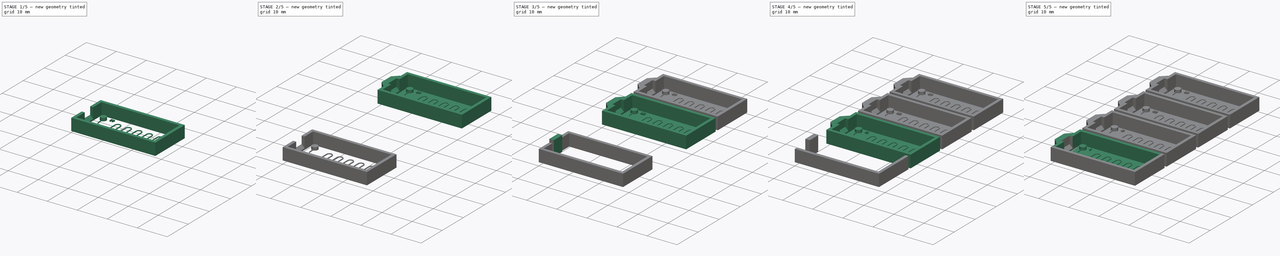
[diagram: build sequence overview — one tinted view per stage of 5, left to right]
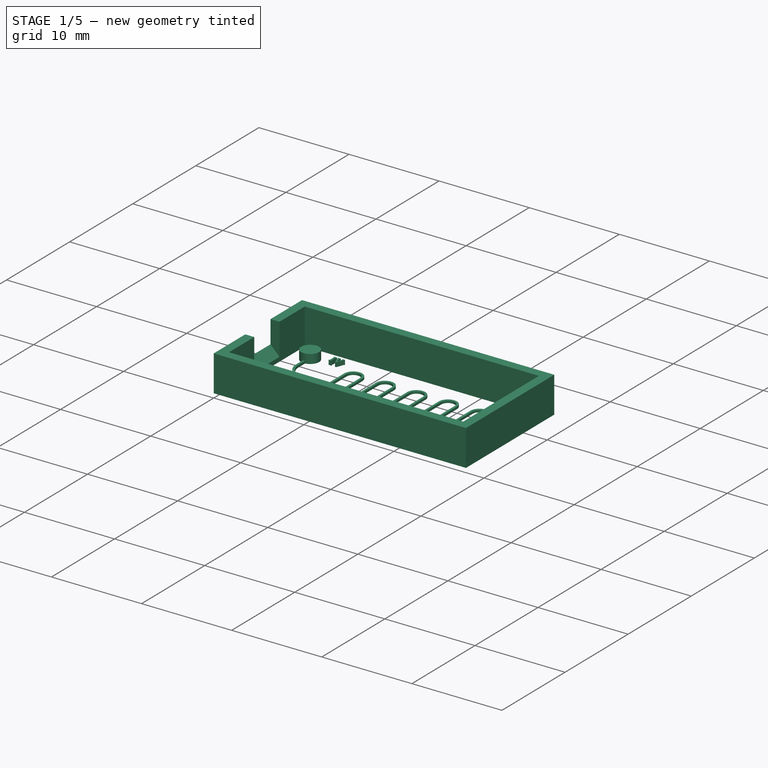
[diagram: stage 1 of 5 — iso view after this stage's code; geometry added in this stage tinted green]
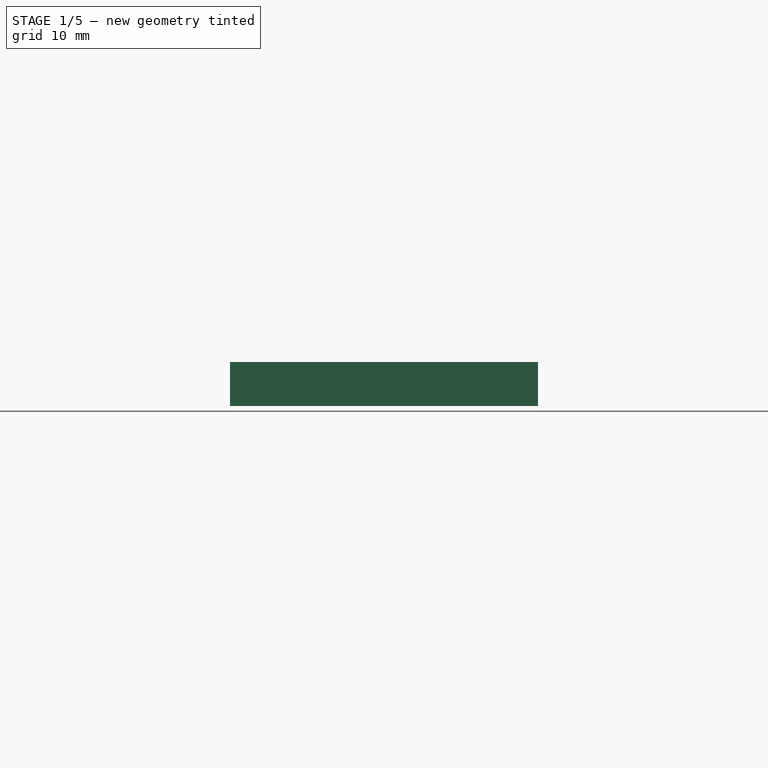
[diagram: stage 1 of 5 — front view after this stage's code; geometry added in this stage tinted green]
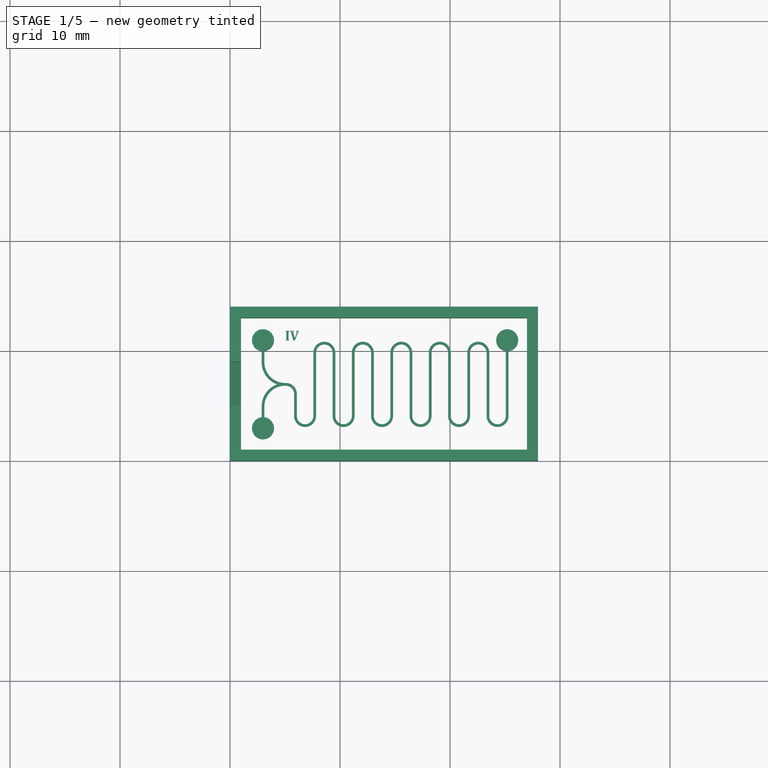
[diagram: stage 1 of 5 — top view after this stage's code; geometry added in this stage tinted green]
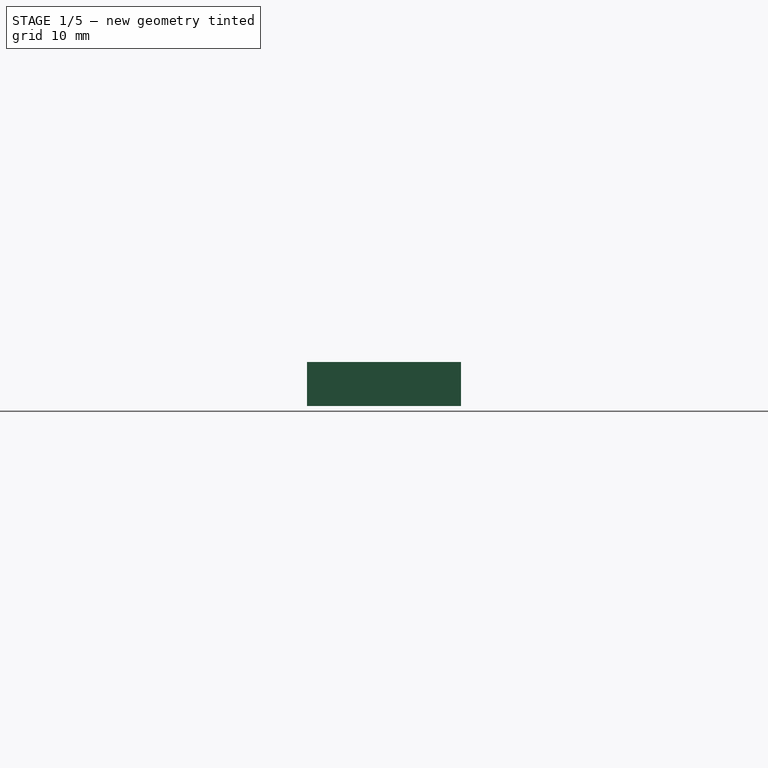
[diagram: stage 1 of 5 — right view after this stage's code; geometry added in this stage tinted green]
FCSTD DOCUMENT  (FreeCAD 0.16R6706 (Git))
Label: Maskless_Small_WithWalls_FreeCAD_ExampleC_v1
License: All rights reserved
LicenseURL: http://en.wikipedia.org/wiki/All_rights_reserved
objects: Sketcher::SketchObject×24, PartDesign::Pad×24, Part::MultiFuse×16, Part::Box×12, Part::Chamfer×8, Part::Extrusion×8, Part::Part2DObjectPython×4, Part::Cut×4
note: 124 computed .brp shape members not serialized (recipe doc carries the construction recipe); baked Part::Feature solids carry a one-line shape summary decoded from their .brp

FEATURE [Sketcher::SketchObject] Sketch021
  Placement = pos=(0,0,0.125) rot=(0,0,1;0rad)
  sketch-geometry (4):
    g0: LineSegment StartX=0 StartY=13 StartZ=0 EndX=28 EndY=13 EndZ=0
    g1: LineSegment StartX=28 StartY=13 StartZ=0 EndX=28 EndY=14 EndZ=0
    g2: LineSegment StartX=28 StartY=14 StartZ=0 EndX=0 EndY=14 EndZ=0
    g3: LineSegment StartX=0 StartY=14 StartZ=0 EndX=0 EndY=13 EndZ=0
  constraints (12):
    c: Coincident(g0,g1)
    c: Coincident(g1,g2)
    c: Coincident(g2,g3)
    c: Coincident(g3,g0)
    c: Horizontal(g0)
    c: Horizontal(g2)
    c: Vertical(g1)
    c: Vertical(g3)
    c: PointOnObject(g0,g-2)
    c: Distance(g3) = 1
    c: Distance(g0) = 28
    c: DistanceY(g2) = 14
FEATURE [Sketcher::SketchObject] Sketch022
  Placement = pos=(0,0,0.125) rot=(0,0,1;0rad)
  sketch-geometry (4):
    g0: LineSegment StartX=0 StartY=0 StartZ=0 EndX=1 EndY=0 EndZ=0
    g1: LineSegment StartX=1 StartY=0 StartZ=0 EndX=1 EndY=14 EndZ=0
    g2: LineSegment StartX=1 StartY=14 StartZ=0 EndX=0 EndY=14 EndZ=0
    g3: LineSegment StartX=0 StartY=14 StartZ=0 EndX=0 EndY=0 EndZ=0
  constraints (12):
    c: Coincident(g0,g1)
    c: Horizontal(g0)
    c: Horizontal(g2)
    c: Vertical(g1)
    c: PointOnObject(g0,g-2)
    c: Coincident(g1,g2)
    c: DistanceX(g-1,g2) = 0
    c: Coincident(g3,g2)
    c: Coincident(g3,g0)
    c: DistanceY(g2) = 14
    c: DistanceY(g0) = 0
    c: DistanceX(g0,g0) = 1
FEATURE [Sketcher::SketchObject] Sketch023
  Placement = pos=(0,0,0.125) rot=(0,0,1;0rad)
  sketch-geometry (4):
    g0: LineSegment StartX=0 StartY=1 StartZ=0 EndX=28 EndY=1 EndZ=0
    g1: LineSegment StartX=28 StartY=0 StartZ=0 EndX=0 EndY=0 EndZ=0
    g2: LineSegment StartX=0 StartY=0 StartZ=0 EndX=0 EndY=1 EndZ=0
    g3: LineSegment StartX=28 StartY=0 StartZ=0 EndX=28 EndY=1 EndZ=0
  constraints (12):
    c: Coincident(g1,g2)
    c: Coincident(g2,g0)
    c: Horizontal(g0)
    c: Horizontal(g1)
    c: Vertical(g2)
    c: Distance(g2) = 1
    c: DistanceX(g0) = 28
    c: Coincident(g3,g1)
    c: Coincident(g3,g0)
    c: Vertical(g3)
    c: DistanceX(g0) = 0
    c: DistanceY(g1) = 0
FEATURE [Sketcher::SketchObject] Sketch024
  Placement = pos=(0,0,0.125) rot=(0,0,1;0rad)
  sketch-geometry (4):
    g0: LineSegment StartX=28 StartY=0 StartZ=0 EndX=27 EndY=0 EndZ=0
    g1: LineSegment StartX=27 StartY=0 StartZ=0 EndX=27 EndY=14 EndZ=0
    g2: LineSegment StartX=27 StartY=14 StartZ=0 EndX=28 EndY=14 EndZ=0
    g3: LineSegment StartX=28 StartY=14 StartZ=0 EndX=28 EndY=0 EndZ=0
  constraints (12):
    c: Coincident(g0,g1)
    c: Coincident(g1,g2)
    c: Coincident(g2,g3)
    c: Coincident(g3,g0)
    c: Horizontal(g0)
    c: Horizontal(g2)
    c: Vertical(g1)
    c: Vertical(g3)
    c: DistanceY(g0) = 0
    c: Distance(g0) = 1
    c: DistanceX(g0) = 28
    c: DistanceY(g2) = 14
FEATURE [PartDesign::Pad] Pad021
  Length = 4
  Length2 = 100
  Placement = pos=(0,0,0.125) rot=(0,0,1;0rad)
  Sketch = -> Sketch021
  Type = 0
FEATURE [PartDesign::Pad] Pad022
  Length = 4
  Length2 = 100
  Placement = pos=(0,0,0.125) rot=(0,0,1;0rad)
  Sketch = -> Sketch022
  Type = 0
FEATURE [PartDesign::Pad] Pad023
  Length = 4
  Length2 = 100
  Placement = pos=(0,0,0.125) rot=(0,0,1;0rad)
  Sketch = -> Sketch023
  Type = 0
FEATURE [PartDesign::Pad] Pad024
  Length = 4
  Length2 = 100
  Placement = pos=(0,0,0.125) rot=(0,0,1;0rad)
  Sketch = -> Sketch024
  Type = 0
FEATURE [Part::MultiFuse] Fusion029
  Shapes = -> [Pad021,Pad022,Pad023,Pad024]
FEATURE [Part::Box] Box010  label="Cube010"
  Height = 5
  Length = 1.5
  Placement = pos=(0,5,0.2) rot=(0,0,1;0rad)
  Width = 4
FEATURE [Part::Chamfer] Chamfer006
  Base = -> Box010
  Edges = 1 edges r=1.4: [Edge4]
FEATURE [Sketcher::SketchObject] Sketch025
  Placement = pos=(0,0,0.125) rot=(0,0,1;0rad)
  sketch-geometry (63):
    g0: ArcOfCircle CenterX=3 CenterY=11 CenterZ=0 NormalX=0 NormalY=0 NormalZ=1 Radius=1 StartAngle=4.83772 EndAngle=10.8702
    g1: ArcOfCircle CenterX=3 CenterY=3 CenterZ=0 NormalX=0 NormalY=0 NormalZ=1 Radius=1 StartAngle=1.69612 EndAngle=7.72865
    g2: LineSegment StartX=2.875 StartY=10.0078 StartZ=0 EndX=2.875 EndY=9.00784 EndZ=0
    g3: LineSegment StartX=3.125 StartY=10.0078 StartZ=0 EndX=3.125 EndY=9.00784 EndZ=0
    g4: LineSegment StartX=3.125 StartY=3.99216 StartZ=0 EndX=3.125 EndY=4.99216 EndZ=0
    g5: LineSegment StartX=2.875 StartY=3.99216 StartZ=0 EndX=2.875 EndY=4.99216 EndZ=0
    g6: LineSegment StartX=5.00784 StartY=7.125 StartZ=0 EndX=5.075 EndY=7.125 EndZ=0
    g7: LineSegment StartX=5.00784 StartY=6.875 StartZ=0 EndX=5.075 EndY=6.875 EndZ=0
    g8: ArcOfCircle CenterX=5.00784 CenterY=9.00784 CenterZ=0 NormalX=0 NormalY=0 NormalZ=1 Radius=2.13284 StartAngle=3.14159 EndAngle=4.36833
    g9: ArcOfCircle CenterX=5.00784 CenterY=9.00784 CenterZ=0 NormalX=0 NormalY=0 NormalZ=1 Radius=1.88284 StartAngle=3.14159 EndAngle=4.71239
    g10: ArcOfCircle CenterX=5.00784 CenterY=4.99216 CenterZ=0 NormalX=0 NormalY=0 NormalZ=1 Radius=2.13284 StartAngle=1.91486 EndAngle=3.14159
    g11: ArcOfCircle CenterX=5.00784 CenterY=4.99216 CenterZ=0 NormalX=0 NormalY=0 NormalZ=1 Radius=1.88284 StartAngle=1.5708 EndAngle=3.14159
    g12: LineSegment StartX=6.075 StartY=6.125 StartZ=0 EndX=6.075 EndY=4.125 EndZ=0
    g13: LineSegment StartX=5.825 StartY=6.125 StartZ=0 EndX=5.825 EndY=4.125 EndZ=0
    g14: LineSegment StartX=7.825 StartY=4.125 StartZ=0 EndX=7.825 EndY=9.875 EndZ=0
    g15: LineSegment StartX=7.575 StartY=4.125 StartZ=0 EndX=7.575 EndY=9.875 EndZ=0
    g16: ArcOfCircle CenterX=5.075 CenterY=6.125 CenterZ=0 NormalX=0 NormalY=0 NormalZ=1 Radius=0.75 StartAngle=0 EndAngle=1.5708
    g17: ArcOfCircle CenterX=5.075 CenterY=6.125 CenterZ=0 NormalX=0 NormalY=0 NormalZ=1 Radius=1 StartAngle=0 EndAngle=1.5708
    g18: LineSegment [constr] StartX=3.94873 StartY=6.84345 StartZ=0 EndX=4.07287 EndY=6.62645 EndZ=0
    g19: ArcOfCircle CenterX=6.825 CenterY=4.125 CenterZ=0 NormalX=0 NormalY=0 NormalZ=1 Radius=1 StartAngle=3.14159 EndAngle=6.28319
    g20: ArcOfCircle CenterX=6.825 CenterY=4.125 CenterZ=0 NormalX=0 NormalY=0 NormalZ=1 Radius=0.75 StartAngle=3.14159 EndAngle=6.28319
    g21: LineSegment StartX=9.325 StartY=9.875 StartZ=0 EndX=9.325 EndY=4.125 EndZ=0
    g22: LineSegment StartX=9.575 StartY=9.875 StartZ=0 EndX=9.575 EndY=4.125 EndZ=0
    g23: ArcOfCircle CenterX=8.575 CenterY=9.875 CenterZ=0 NormalX=0 NormalY=0 NormalZ=1 Radius=1 StartAngle=0 EndAngle=3.14159
    g24: ArcOfCircle CenterX=8.575 CenterY=9.875 CenterZ=0 NormalX=0 NormalY=0 NormalZ=1 Radius=0.75 StartAngle=0 EndAngle=3.14159
    g25: LineSegment StartX=11.075 StartY=4.125 StartZ=0 EndX=11.075 EndY=9.875 EndZ=0
    g26: LineSegment StartX=11.325 StartY=4.125 StartZ=0 EndX=11.325 EndY=9.875 EndZ=0
    g27: ArcOfCircle CenterX=12.075 CenterY=9.875 CenterZ=0 NormalX=0 NormalY=0 NormalZ=1 Radius=0.75 StartAngle=4.292e-09 EndAngle=3.14159
    g28: ArcOfCircle CenterX=12.075 CenterY=9.875 CenterZ=0 NormalX=0 NormalY=0 NormalZ=1 Radius=1 StartAngle=3.219e-09 EndAngle=3.14159
    g29: LineSegment StartX=12.825 StartY=9.875 StartZ=0 EndX=12.825 EndY=4.125 EndZ=0
    g30: LineSegment StartX=13.075 StartY=9.875 StartZ=0 EndX=13.075 EndY=4.125 EndZ=0
    g31: ArcOfCircle CenterX=13.825 CenterY=4.125 CenterZ=0 NormalX=0 NormalY=0 NormalZ=1 Radius=0.75 StartAngle=3.14159 EndAngle=6.28319
    g32: ArcOfCircle CenterX=13.825 CenterY=4.125 CenterZ=0 NormalX=0 NormalY=0 NormalZ=1 Radius=1 StartAngle=3.14159 EndAngle=6.28319
    g33: LineSegment StartX=14.575 StartY=4.125 StartZ=0 EndX=14.575 EndY=9.875 EndZ=0
    g34: LineSegment StartX=14.825 StartY=4.125 StartZ=0 EndX=14.825 EndY=9.875 EndZ=0
    g35: LineSegment StartX=16.575 StartY=9.875 StartZ=0 EndX=16.575 EndY=4.125 EndZ=0
    g36: LineSegment StartX=16.325 StartY=9.875 StartZ=0 EndX=16.325 EndY=4.125 EndZ=0
    g37: ArcOfCircle CenterX=17.325 CenterY=4.125 CenterZ=0 NormalX=0 NormalY=0 NormalZ=1 Radius=1 StartAngle=3.14159 EndAngle=6.28319
    g38: ArcOfCircle CenterX=17.325 CenterY=4.125 CenterZ=0 NormalX=0 NormalY=0 NormalZ=1 Radius=0.75 StartAngle=3.14159 EndAngle=6.28319
    g39: LineSegment StartX=18.075 StartY=4.125 StartZ=0 EndX=18.075 EndY=9.875 EndZ=0
    g40: LineSegment StartX=18.325 StartY=4.125 StartZ=0 EndX=18.325 EndY=9.875 EndZ=0
    g41: ArcOfCircle CenterX=19.075 CenterY=9.875 CenterZ=0 NormalX=0 NormalY=0 NormalZ=1 Radius=1 StartAngle=0 EndAngle=3.14159
    g42: ArcOfCircle CenterX=19.075 CenterY=9.875 CenterZ=0 NormalX=0 NormalY=0 NormalZ=1 Radius=0.75 StartAngle=0 EndAngle=3.14159
    g43: LineSegment StartX=20.075 StartY=9.875 StartZ=0 EndX=20.075 EndY=4.125 EndZ=0
    g44: LineSegment StartX=19.825 StartY=9.875 StartZ=0 EndX=19.825 EndY=4.125 EndZ=0
    g45: ArcOfCircle CenterX=20.825 CenterY=4.125 CenterZ=0 NormalX=0 NormalY=0 NormalZ=1 Radius=1 StartAngle=3.14159 EndAngle=6.28319
    g46: ArcOfCircle CenterX=20.825 CenterY=4.125 CenterZ=0 NormalX=0 NormalY=0 NormalZ=1 Radius=0.75 StartAngle=3.14159 EndAngle=6.28319
    g47: LineSegment StartX=21.825 StartY=4.125 StartZ=0 EndX=21.825 EndY=9.875 EndZ=0
    g48: ArcOfCircle CenterX=12.5863 CenterY=9.625 CenterZ=0 NormalX=0 NormalY=0 NormalZ=1 Radius=0 StartAngle=0 EndAngle=3.14159
    g49: LineSegment StartX=23.575 StartY=9.875 StartZ=0 EndX=23.575 EndY=4.125 EndZ=0
    g50: ArcOfCircle CenterX=24.325 CenterY=4.125 CenterZ=0 NormalX=0 NormalY=0 NormalZ=1 Radius=0.75 StartAngle=3.14159 EndAngle=6.28319
    g51: ArcOfCircle CenterX=24.325 CenterY=4.125 CenterZ=0 NormalX=0 NormalY=0 NormalZ=1 Radius=1 StartAngle=3.14159 EndAngle=6.28319
    g52: LineSegment StartX=25.075 StartY=4.125 StartZ=0 EndX=25.075 EndY=10.0078 EndZ=0
    g53: LineSegment StartX=25.325 StartY=4.125 StartZ=0 EndX=25.325 EndY=10.0078 EndZ=0
    g54: ArcOfCircle CenterX=25.2 CenterY=11 CenterZ=0 NormalX=0 NormalY=0 NormalZ=1 Radius=1 StartAngle=4.83772 EndAngle=10.8702
    g55: LineSegment StartX=23.325 StartY=4.125 StartZ=0 EndX=23.325 EndY=9.875 EndZ=0
    g56: LineSegment StartX=21.575 StartY=4.125 StartZ=0 EndX=21.575 EndY=9.875 EndZ=0
    g57: ArcOfCircle CenterX=10.325 CenterY=4.125 CenterZ=0 NormalX=0 NormalY=0 NormalZ=1 Radius=0.75 StartAngle=3.14159 EndAngle=6.28319
    g58: ArcOfCircle CenterX=10.325 CenterY=4.125 CenterZ=0 NormalX=0 NormalY=0 NormalZ=1 Radius=1 StartAngle=3.14159 EndAngle=6.28319
    g59: ArcOfCircle CenterX=15.575 CenterY=9.875 CenterZ=0 NormalX=0 NormalY=0 NormalZ=1 Radius=0.75 StartAngle=5.819e-09 EndAngle=3.14159
    g60: ArcOfCircle CenterX=15.575 CenterY=9.875 CenterZ=0 NormalX=0 NormalY=0 NormalZ=1 Radius=1 StartAngle=4.365e-09 EndAngle=3.14159
    g61: ArcOfCircle CenterX=22.575 CenterY=9.875 CenterZ=0 NormalX=0 NormalY=0 NormalZ=1 Radius=0.75 StartAngle=6.28319 EndAngle=9.42478
    g62: ArcOfCircle CenterX=22.575 CenterY=9.875 CenterZ=0 NormalX=0 NormalY=0 NormalZ=1 Radius=1 StartAngle=6.28319 EndAngle=9.42478
  constraints (197):
    c: DistanceX(g0,g0) = 0.25
    c: DistanceX(g1,g1) = 0.25
    c: DistanceX(g0,g1) = 0
    c: DistanceX(g25,g26) = 0.25
    c: Radius(g0) = 1
    c: Equal(g0,g1)
    c: DistanceX(g1,g0) = 0
    c: Coincident(g2,g0)
    c: Coincident(g3,g0)
    c: Coincident(g4,g1)
    c: Coincident(g5,g1)
    c: Tangent(g2,g8) = -1.5708
    c: Tangent(g3,g9) = -1.5708
    c: Tangent(g6,g9) = -1.5708
    c: Tangent(g5,g10) = 1.5708
    c: Tangent(g4,g11) = 1.5708
    c: Tangent(g7,g11) = 1.5708
    c: Coincident(g10,g8)
    c: Horizontal(g7)
    c: Horizontal(g6)
    c: Parallel(g2,g3)
    c: Parallel(g5,g4)
    c: Vertical(g5)
    c: Vertical(g2)
    c: Equal(g7,g6)
    c: DistanceX(g1,g1) = 0.125
    c: DistanceY(g1) = 3
    c: DistanceX(g1) = 3
    c: DistanceY(g5,g5) = 1
    c: Equal(g2,g5)
    c: DistanceY(g1,g0) = 8
    c: DistanceY(g1,g8) = 4
    c: Equal(g5,g4)
    c: Equal(g3,g2)
    c: Tangent(g7,g16) = 1.5708
    c: Tangent(g13,g16) = 1.5708
    c: Tangent(g6,g17) = 1.5708
    c: Tangent(g12,g17) = 1.5708
    c: DistanceY(g7,g6) = 0.25
    c: DistanceY(g7,g8) = 0.125
    c: DistanceX(g13,g12) = 0.25
    c: PointOnObject(g18,g10)
    c: PointOnObject(g18,g11)
    c: Perpendicular(g10,g18)
    c: Perpendicular(g11,g18)
    c: Vertical(g26)
    c: Vertical(g22)
    c: Vertical(g14)
    c: Vertical(g12)
    c: DistanceX(g15,g14) = 0.25
    c: DistanceX(g21,g22) = 0.25
    c: DistanceY(g13,g13) = 2
    c: DistanceX(g18) = 3.94873
    c: Coincident(g28,g27)
    c: Coincident(g28,g25)
    c: Coincident(g27,g26)
    c: DistanceX(g27,g28) = 0.25
    c: Coincident(g29,g27)
    c: Vertical(g29)
    c: Coincident(g30,g28)
    c: Vertical(g30)
    c: Coincident(g31,g30)
    c: Coincident(g32,g31)
    c: Coincident(g32,g29)
    c: Coincident(g33,g31)
    c: Vertical(g33)
    c: Coincident(g34,g32)
    c: Vertical(g34)
    c: Vertical(g35)
    c: Vertical(g36)
    c: Coincident(g37,g36)
    c: Coincident(g38,g37)
    c: Coincident(g38,g35)
    c: Coincident(g39,g38)
    c: Vertical(g39)
    c: Coincident(g40,g37)
    c: Vertical(g40)
    c: Coincident(g41,g39)
    c: Coincident(g42,g41)
    c: Coincident(g42,g40)
    c: Coincident(g43,g41)
    c: Vertical(g43)
    c: Coincident(g44,g42)
    c: Vertical(g44)
    c: Coincident(g45,g44)
    c: Coincident(g46,g45)
    c: Coincident(g46,g43)
    c: Coincident(g47,g45)
    c: Vertical(g47)
    c: Vertical(g49)
    c: Coincident(g50,g49)
    c: Coincident(g51,g50)
    c: Coincident(g52,g50)
    c: Vertical(g52)
    c: Coincident(g53,g51)
    c: Vertical(g53)
    c: DistanceY(g53,g52) = 0
    c: Coincident(g54,g52)
    c: Coincident(g54,g53)
    c: DistanceY(g0,g54) = 0
    c: Equal(g54,g0)
    c: DistanceY(g15,g14) = 0
    c: DistanceY(g21,g22) = 0
    c: DistanceY(g25,g26) = 0
    c: DistanceY(g27,g28) = 0
    c: DistanceY(g35,g36) = 0
    c: DistanceY(g40,g39) = 0
    c: DistanceY(g41,g42) = 0
    c: DistanceY(g38,g37) = 0
    c: DistanceY(g36,g35) = 0
    c: DistanceY(g32,g31) = 0
    c: DistanceY(g30,g29) = 0
    c: DistanceY(g26,g25) = 0
    c: DistanceY(g22,g21) = 0
    c: DistanceY(g14,g15) = 0
    c: DistanceY(g12,g13) = 0
    c: DistanceY(g51,g49) = 0
    c: DistanceY(g50,g51) = 0
    c: DistanceX(g50,g51) = 0.25
    c: DistanceX(g49,g50) = 1.5
    c: Coincident(g55,g51)
    c: Vertical(g55)
    c: DistanceY(g55,g49) = 0
    c: DistanceY(g46,g45) = 0
    c: DistanceY(g43,g44) = 0
    c: DistanceX(g30,g31) = 1.5
    c: DistanceX(g26,g27) = 1.5
    c: Vertical(g56)
    c: Coincident(g56,g46)
    c: DistanceY(g47,g56) = 0
    c: Vertical(g25)
    c: DistanceX(g22,g25) = 1.5
    c: DistanceX(g14,g21) = 1.5
    c: DistanceX(g12,g15) = 1.5
    c: Coincident(g57,g25)
    c: Coincident(g57,g22)
    c: Coincident(g58,g57)
    c: Coincident(g58,g26)
    c: DistanceX(g36,g35) = 0.25
    c: Coincident(g59,g36)
    c: Coincident(g59,g34)
    c: Coincident(g60,g59)
    c: Coincident(g60,g35)
    c: DistanceX(g47,g55) = 1.5
    c: Coincident(g61,g47)
    c: Coincident(g62,g61)
    c: Coincident(g62,g49)
    c: Coincident(g62,g56)
    c: DistanceX(g43,g46) = 1.5
    c: DistanceX(g35,g38) = 1.5
    c: DistanceX(g34,g36) = 1.5
    c: DistanceX(g40,g42) = 1.5
    c: DistanceY(g50,g50) = 0
    c: DistanceY(g50,g49) = 0
    c: DistanceY(g45,g51) = 0
    c: DistanceY(g46,g45) = 0
    c: DistanceY(g43,g45) = 0
    c: DistanceY(g37,g44) = 0
    c: DistanceY(g37,g38) = 0
    c: DistanceY(g37,g35) = 0
    c: DistanceY(g36,g32) = 0
    c: DistanceY(g31,g31) = 0
    c: DistanceY(g31,g30) = 0
    c: DistanceY(g26,g29) = 0
    c: DistanceY(g57,g25) = 0
    c: DistanceY(g57,g22) = 0
    c: Coincident(g21,g58)
    c: Coincident(g23,g22)
    c: Coincident(g24,g21)
    c: Coincident(g24,g14)
    c: Coincident(g23,g15)
    c: Coincident(g14,g19)
    c: Coincident(g15,g20)
    c: Coincident(g12,g20)
    c: Coincident(g13,g19)
    c: Coincident(g20,g19)
    c: Coincident(g23,g24)
    c: DistanceY(g14,g21) = 0
    c: DistanceY(g14,g23) = 0
    c: DistanceY(g23,g21) = 0
    c: DistanceY(g25,g22) = 0
    c: DistanceY(g27,g26) = 0
    c: DistanceY(g28,g60) = 0
    c: Coincident(g33,g60)
    c: DistanceY(g34,g33) = 0
    c: DistanceY(g34,g59) = 0
    c: DistanceY(g35,g39) = 0
    c: DistanceY(g41,g40) = 0
    c: DistanceY(g41,g42) = 0
    c: DistanceY(g41,g56) = 0
    c: DistanceY(g61,g47) = 0
    c: Coincident(g55,g61)
    c: DistanceY(g19,g12) = 0
    c: DistanceY(g15,g15) = 5.75
    c: DistanceY(g16,g7) = 0.75
    c: DistanceY(g19,g15) = 0
    c: DistanceX(g0,g54) = 22.2
FEATURE [PartDesign::Pad] Pad025
  Length = 0.25
  Length2 = 100
  Placement = pos=(0,0,0.125) rot=(0,0,1;0rad)
  Sketch = -> Sketch025
  Type = 0
FEATURE [Sketcher::SketchObject] Sketch026
  Placement = pos=(0,0,0.125) rot=(0,0,1;0rad)
  sketch-geometry (3):
    g0: Circle CenterX=3 CenterY=3 CenterZ=0 NormalX=0 NormalY=0 NormalZ=1 Radius=1
    g1: Circle CenterX=3 CenterY=11 CenterZ=0 NormalX=0 NormalY=0 NormalZ=1 Radius=1
    g2: Circle CenterX=25.2 CenterY=11 CenterZ=0 NormalX=0 NormalY=0 NormalZ=1 Radius=1
  constraints (9):
    c: DistanceX(g1,g0) = 0
    c: DistanceY(g0,g1) = 8
    c: DistanceX(g1,g2) = 22.2
    c: DistanceY(g1,g2) = 0
    c: DistanceY(g0) = 3
    c: DistanceX(g0) = 3
    c: Radius(g0) = 1
    c: Equal(g0,g1)
    c: Equal(g0,g2)
FEATURE [PartDesign::Pad] Pad026
  Length = 1
  Length2 = 100
  Placement = pos=(0,0,0.125) rot=(0,0,1;0rad)
  Sketch = -> Sketch026
  Type = 0
FEATURE [Part::MultiFuse] Fusion030
  Shapes = -> [Pad026,Pad025]
FEATURE [Part::Part2DObjectPython] ShapeString004  # Draft 2D object (typed FeaturePython)
  FontFile = <userpath>/ownCloud/3D Print Files/Standard_Prints/Eiffel_Tower/SLA Optimized (Form 1+)/CAMBRIAB.TTF
  Placement = pos=(5,11,0.125) rot=(0,0,1;0rad)
  Size = 1
  String = IV
  Support = -> Fusion030
  Tracking = 0
FEATURE [Part::Extrusion] Extrude006
  Base = -> ShapeString004
  Dir = (0,0,0.5)
  Solid = false
FEATURE [Part::Extrusion] Extrude007
  Base = -> ShapeString004
  Dir = (0,0,0.5)
  Solid = false
FEATURE [Part::MultiFuse] Fusion031
  Shapes = -> [Extrude006,Extrude007,Fusion030]
FEATURE [Part::Cut] Cut003
  Base = -> Fusion029
  Tool = -> Chamfer006
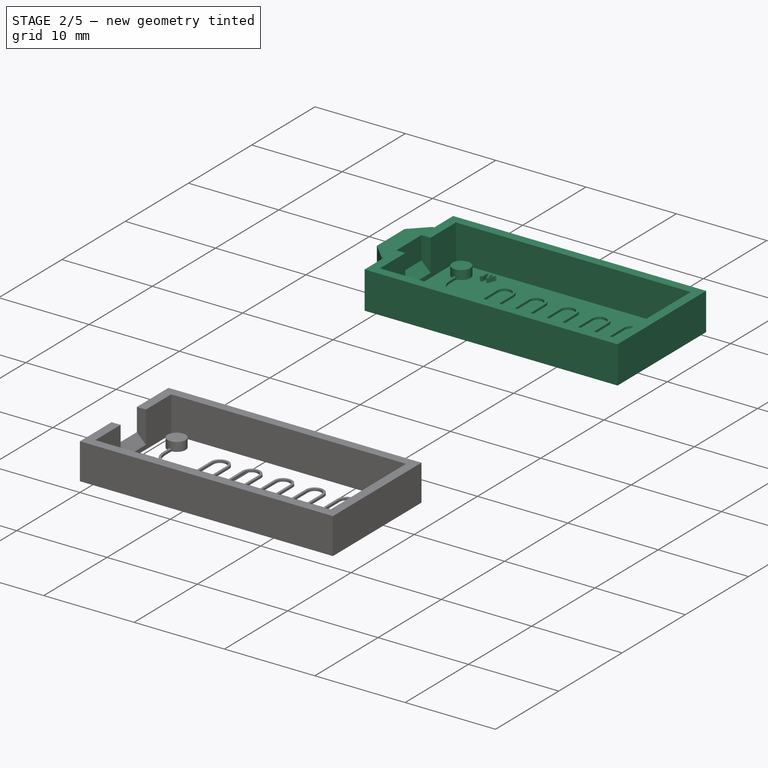
[diagram: stage 2 of 5 — iso view after this stage's code; geometry added in this stage tinted green]
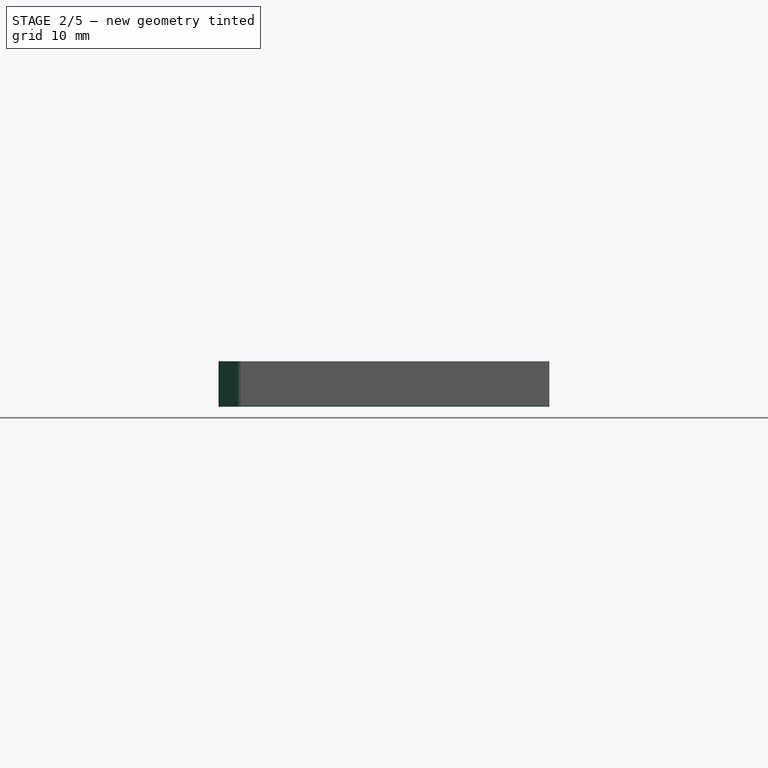
[diagram: stage 2 of 5 — front view after this stage's code; geometry added in this stage tinted green]
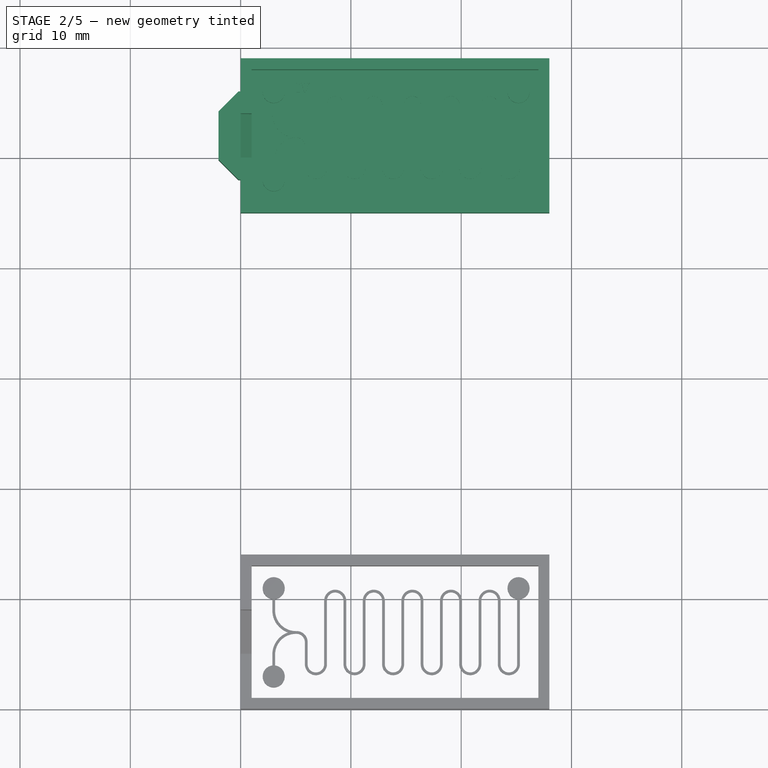
[diagram: stage 2 of 5 — top view after this stage's code; geometry added in this stage tinted green]
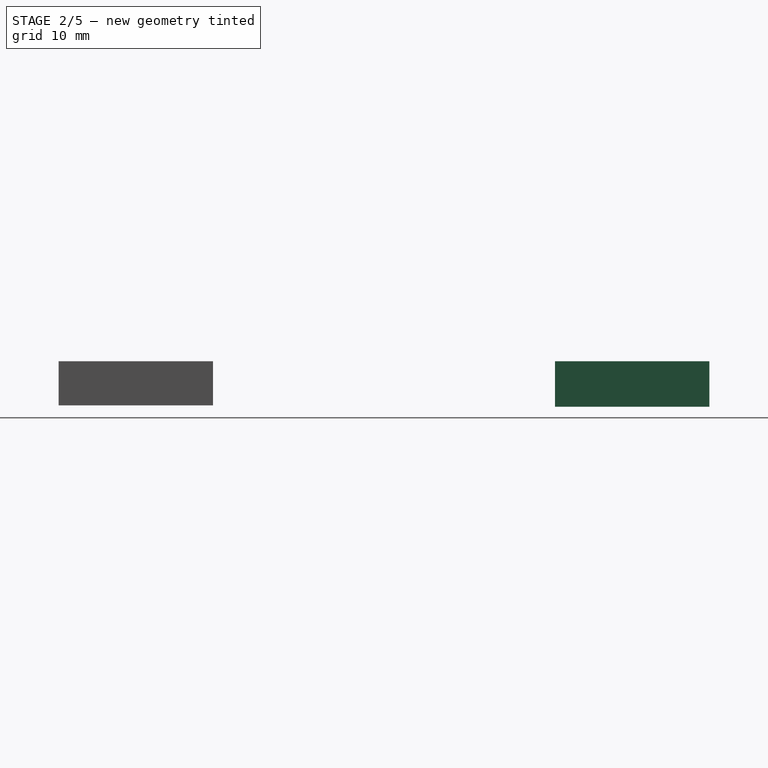
[diagram: stage 2 of 5 — right view after this stage's code; geometry added in this stage tinted green]
FEATURE [Sketcher::SketchObject] Sketch015
  Placement = pos=(0,0,0.125) rot=(0,0,1;0rad)
  sketch-geometry (4):
    g0: LineSegment StartX=0 StartY=13 StartZ=0 EndX=28 EndY=13 EndZ=0
    g1: LineSegment StartX=28 StartY=13 StartZ=0 EndX=28 EndY=14 EndZ=0
    g2: LineSegment StartX=28 StartY=14 StartZ=0 EndX=0 EndY=14 EndZ=0
    g3: LineSegment StartX=0 StartY=14 StartZ=0 EndX=0 EndY=13 EndZ=0
  constraints (12):
    c: Coincident(g0,g1)
    c: Coincident(g1,g2)
    c: Coincident(g2,g3)
    c: Coincident(g3,g0)
    c: Horizontal(g0)
    c: Horizontal(g2)
    c: Vertical(g1)
    c: Vertical(g3)
    c: PointOnObject(g0,g-2)
    c: Distance(g3) = 1
    c: Distance(g0) = 28
    c: DistanceY(g2) = 14
FEATURE [Sketcher::SketchObject] Sketch016
  Placement = pos=(0,0,0.125) rot=(0,0,1;0rad)
  sketch-geometry (4):
    g0: LineSegment StartX=0 StartY=0 StartZ=0 EndX=1 EndY=0 EndZ=0
    g1: LineSegment StartX=1 StartY=0 StartZ=0 EndX=1 EndY=14 EndZ=0
    g2: LineSegment StartX=1 StartY=14 StartZ=0 EndX=0 EndY=14 EndZ=0
    g3: LineSegment StartX=0 StartY=14 StartZ=0 EndX=0 EndY=0 EndZ=0
  constraints (12):
    c: Coincident(g0,g1)
    c: Horizontal(g0)
    c: Horizontal(g2)
    c: Vertical(g1)
    c: PointOnObject(g0,g-2)
    c: Coincident(g1,g2)
    c: DistanceX(g-1,g2) = 0
    c: Coincident(g3,g2)
    c: Coincident(g3,g0)
    c: DistanceY(g2) = 14
    c: DistanceY(g0) = 0
    c: DistanceX(g0,g0) = 1
FEATURE [Sketcher::SketchObject] Sketch017
  Placement = pos=(0,0,0.125) rot=(0,0,1;0rad)
  sketch-geometry (4):
    g0: LineSegment StartX=0 StartY=1 StartZ=0 EndX=28 EndY=1 EndZ=0
    g1: LineSegment StartX=28 StartY=0 StartZ=0 EndX=0 EndY=0 EndZ=0
    g2: LineSegment StartX=0 StartY=0 StartZ=0 EndX=0 EndY=1 EndZ=0
    g3: LineSegment StartX=28 StartY=0 StartZ=0 EndX=28 EndY=1 EndZ=0
  constraints (12):
    c: Coincident(g1,g2)
    c: Coincident(g2,g0)
    c: Horizontal(g0)
    c: Horizontal(g1)
    c: Vertical(g2)
    c: Distance(g2) = 1
    c: DistanceX(g0) = 28
    c: Coincident(g3,g1)
    c: Coincident(g3,g0)
    c: Vertical(g3)
    c: DistanceX(g0) = 0
    c: DistanceY(g1) = 0
FEATURE [Sketcher::SketchObject] Sketch018
  Placement = pos=(0,0,0.125) rot=(0,0,1;0rad)
  sketch-geometry (4):
    g0: LineSegment StartX=28 StartY=0 StartZ=0 EndX=27 EndY=0 EndZ=0
    g1: LineSegment StartX=27 StartY=0 StartZ=0 EndX=27 EndY=14 EndZ=0
    g2: LineSegment StartX=27 StartY=14 StartZ=0 EndX=28 EndY=14 EndZ=0
    g3: LineSegment StartX=28 StartY=14 StartZ=0 EndX=28 EndY=0 EndZ=0
  constraints (12):
    c: Coincident(g0,g1)
    c: Coincident(g1,g2)
    c: Coincident(g2,g3)
    c: Coincident(g3,g0)
    c: Horizontal(g0)
    c: Horizontal(g2)
    c: Vertical(g1)
    c: Vertical(g3)
    c: DistanceY(g0) = 0
    c: Distance(g0) = 1
    c: DistanceX(g0) = 28
    c: DistanceY(g2) = 14
FEATURE [PartDesign::Pad] Pad015
  Length = 4
  Length2 = 100
  Placement = pos=(0,0,0.125) rot=(0,0,1;0rad)
  Sketch = -> Sketch015
  Type = 0
FEATURE [PartDesign::Pad] Pad016
  Length = 4
  Length2 = 100
  Placement = pos=(0,0,0.125) rot=(0,0,1;0rad)
  Sketch = -> Sketch016
  Type = 0
FEATURE [PartDesign::Pad] Pad017
  Length = 4
  Length2 = 100
  Placement = pos=(0,0,0.125) rot=(0,0,1;0rad)
  Sketch = -> Sketch017
  Type = 0
FEATURE [PartDesign::Pad] Pad018
  Length = 4
  Length2 = 100
  Placement = pos=(0,0,0.125) rot=(0,0,1;0rad)
  Sketch = -> Sketch018
  Type = 0
FEATURE [Part::MultiFuse] Fusion025
  Shapes = -> [Pad015,Pad016,Pad017,Pad018]
FEATURE [Part::Box] Box007  label="Cube007"
  Height = 5
  Length = 1.5
  Placement = pos=(0,5,0.2) rot=(0,0,1;0rad)
  Width = 4
FEATURE [Part::Chamfer] Chamfer004
  Base = -> Box007
  Edges = 1 edges r=1.4: [Edge4]
FEATURE [Sketcher::SketchObject] Sketch019
  Placement = pos=(0,0,0.125) rot=(0,0,1;0rad)
  sketch-geometry (63):
    g0: ArcOfCircle CenterX=3 CenterY=11 CenterZ=0 NormalX=0 NormalY=0 NormalZ=1 Radius=1 StartAngle=4.83772 EndAngle=10.8702
    g1: ArcOfCircle CenterX=3 CenterY=3 CenterZ=0 NormalX=0 NormalY=0 NormalZ=1 Radius=1 StartAngle=1.69612 EndAngle=7.72865
    g2: LineSegment StartX=2.875 StartY=10.0078 StartZ=0 EndX=2.875 EndY=9.00784 EndZ=0
    g3: LineSegment StartX=3.125 StartY=10.0078 StartZ=0 EndX=3.125 EndY=9.00784 EndZ=0
    g4: LineSegment StartX=3.125 StartY=3.99216 StartZ=0 EndX=3.125 EndY=4.99216 EndZ=0
    g5: LineSegment StartX=2.875 StartY=3.99216 StartZ=0 EndX=2.875 EndY=4.99216 EndZ=0
    g6: LineSegment StartX=5.00784 StartY=7.125 StartZ=0 EndX=5.075 EndY=7.125 EndZ=0
    g7: LineSegment StartX=5.00784 StartY=6.875 StartZ=0 EndX=5.075 EndY=6.875 EndZ=0
    g8: ArcOfCircle CenterX=5.00784 CenterY=9.00784 CenterZ=0 NormalX=0 NormalY=0 NormalZ=1 Radius=2.13284 StartAngle=3.14159 EndAngle=4.36833
    g9: ArcOfCircle CenterX=5.00784 CenterY=9.00784 CenterZ=0 NormalX=0 NormalY=0 NormalZ=1 Radius=1.88284 StartAngle=3.14159 EndAngle=4.71239
    g10: ArcOfCircle CenterX=5.00784 CenterY=4.99216 CenterZ=0 NormalX=0 NormalY=0 NormalZ=1 Radius=2.13284 StartAngle=1.91486 EndAngle=3.14159
    g11: ArcOfCircle CenterX=5.00784 CenterY=4.99216 CenterZ=0 NormalX=0 NormalY=0 NormalZ=1 Radius=1.88284 StartAngle=1.5708 EndAngle=3.14159
    g12: LineSegment StartX=6.075 StartY=6.125 StartZ=0 EndX=6.075 EndY=4.125 EndZ=0
    g13: LineSegment StartX=5.825 StartY=6.125 StartZ=0 EndX=5.825 EndY=4.125 EndZ=0
    g14: LineSegment StartX=7.825 StartY=4.125 StartZ=0 EndX=7.825 EndY=9.875 EndZ=0
    g15: LineSegment StartX=7.575 StartY=4.125 StartZ=0 EndX=7.575 EndY=9.875 EndZ=0
    g16: ArcOfCircle CenterX=5.075 CenterY=6.125 CenterZ=0 NormalX=0 NormalY=0 NormalZ=1 Radius=0.75 StartAngle=0 EndAngle=1.5708
    g17: ArcOfCircle CenterX=5.075 CenterY=6.125 CenterZ=0 NormalX=0 NormalY=0 NormalZ=1 Radius=1 StartAngle=0 EndAngle=1.5708
    g18: LineSegment [constr] StartX=3.94873 StartY=6.84345 StartZ=0 EndX=4.07287 EndY=6.62645 EndZ=0
    g19: ArcOfCircle CenterX=6.825 CenterY=4.125 CenterZ=0 NormalX=0 NormalY=0 NormalZ=1 Radius=1 StartAngle=3.14159 EndAngle=6.28319
    g20: ArcOfCircle CenterX=6.825 CenterY=4.125 CenterZ=0 NormalX=0 NormalY=0 NormalZ=1 Radius=0.75 StartAngle=3.14159 EndAngle=6.28319
    g21: LineSegment StartX=9.325 StartY=9.875 StartZ=0 EndX=9.325 EndY=4.125 EndZ=0
    g22: LineSegment StartX=9.575 StartY=9.875 StartZ=0 EndX=9.575 EndY=4.125 EndZ=0
    g23: ArcOfCircle CenterX=8.575 CenterY=9.875 CenterZ=0 NormalX=0 NormalY=0 NormalZ=1 Radius=1 StartAngle=0 EndAngle=3.14159
    g24: ArcOfCircle CenterX=8.575 CenterY=9.875 CenterZ=0 NormalX=0 NormalY=0 NormalZ=1 Radius=0.75 StartAngle=0 EndAngle=3.14159
    g25: LineSegment StartX=11.075 StartY=4.125 StartZ=0 EndX=11.075 EndY=9.875 EndZ=0
    g26: LineSegment StartX=11.325 StartY=4.125 StartZ=0 EndX=11.325 EndY=9.875 EndZ=0
    g27: ArcOfCircle CenterX=12.075 CenterY=9.875 CenterZ=0 NormalX=0 NormalY=0 NormalZ=1 Radius=0.75 StartAngle=4.292e-09 EndAngle=3.14159
    g28: ArcOfCircle CenterX=12.075 CenterY=9.875 CenterZ=0 NormalX=0 NormalY=0 NormalZ=1 Radius=1 StartAngle=3.219e-09 EndAngle=3.14159
    g29: LineSegment StartX=12.825 StartY=9.875 StartZ=0 EndX=12.825 EndY=4.125 EndZ=0
    g30: LineSegment StartX=13.075 StartY=9.875 StartZ=0 EndX=13.075 EndY=4.125 EndZ=0
    g31: ArcOfCircle CenterX=13.825 CenterY=4.125 CenterZ=0 NormalX=0 NormalY=0 NormalZ=1 Radius=0.75 StartAngle=3.14159 EndAngle=6.28319
    g32: ArcOfCircle CenterX=13.825 CenterY=4.125 CenterZ=0 NormalX=0 NormalY=0 NormalZ=1 Radius=1 StartAngle=3.14159 EndAngle=6.28319
    g33: LineSegment StartX=14.575 StartY=4.125 StartZ=0 EndX=14.575 EndY=9.875 EndZ=0
    g34: LineSegment StartX=14.825 StartY=4.125 StartZ=0 EndX=14.825 EndY=9.875 EndZ=0
    g35: LineSegment StartX=16.575 StartY=9.875 StartZ=0 EndX=16.575 EndY=4.125 EndZ=0
    g36: LineSegment StartX=16.325 StartY=9.875 StartZ=0 EndX=16.325 EndY=4.125 EndZ=0
    g37: ArcOfCircle CenterX=17.325 CenterY=4.125 CenterZ=0 NormalX=0 NormalY=0 NormalZ=1 Radius=1 StartAngle=3.14159 EndAngle=6.28319
    g38: ArcOfCircle CenterX=17.325 CenterY=4.125 CenterZ=0 NormalX=0 NormalY=0 NormalZ=1 Radius=0.75 StartAngle=3.14159 EndAngle=6.28319
    g39: LineSegment StartX=18.075 StartY=4.125 StartZ=0 EndX=18.075 EndY=9.875 EndZ=0
    g40: LineSegment StartX=18.325 StartY=4.125 StartZ=0 EndX=18.325 EndY=9.875 EndZ=0
    g41: ArcOfCircle CenterX=19.075 CenterY=9.875 CenterZ=0 NormalX=0 NormalY=0 NormalZ=1 Radius=1 StartAngle=0 EndAngle=3.14159
    g42: ArcOfCircle CenterX=19.075 CenterY=9.875 CenterZ=0 NormalX=0 NormalY=0 NormalZ=1 Radius=0.75 StartAngle=0 EndAngle=3.14159
    g43: LineSegment StartX=20.075 StartY=9.875 StartZ=0 EndX=20.075 EndY=4.125 EndZ=0
    g44: LineSegment StartX=19.825 StartY=9.875 StartZ=0 EndX=19.825 EndY=4.125 EndZ=0
    g45: ArcOfCircle CenterX=20.825 CenterY=4.125 CenterZ=0 NormalX=0 NormalY=0 NormalZ=1 Radius=1 StartAngle=3.14159 EndAngle=6.28319
    g46: ArcOfCircle CenterX=20.825 CenterY=4.125 CenterZ=0 NormalX=0 NormalY=0 NormalZ=1 Radius=0.75 StartAngle=3.14159 EndAngle=6.28319
    g47: LineSegment StartX=21.825 StartY=4.125 StartZ=0 EndX=21.825 EndY=9.875 EndZ=0
    g48: ArcOfCircle CenterX=12.5863 CenterY=9.625 CenterZ=0 NormalX=0 NormalY=0 NormalZ=1 Radius=0 StartAngle=0 EndAngle=3.14159
    g49: LineSegment StartX=23.575 StartY=9.875 StartZ=0 EndX=23.575 EndY=4.125 EndZ=0
    g50: ArcOfCircle CenterX=24.325 CenterY=4.125 CenterZ=0 NormalX=0 NormalY=0 NormalZ=1 Radius=0.75 StartAngle=3.14159 EndAngle=6.28319
    g51: ArcOfCircle CenterX=24.325 CenterY=4.125 CenterZ=0 NormalX=0 NormalY=0 NormalZ=1 Radius=1 StartAngle=3.14159 EndAngle=6.28319
    g52: LineSegment StartX=25.075 StartY=4.125 StartZ=0 EndX=25.075 EndY=10.0078 EndZ=0
    g53: LineSegment StartX=25.325 StartY=4.125 StartZ=0 EndX=25.325 EndY=10.0078 EndZ=0
    g54: ArcOfCircle CenterX=25.2 CenterY=11 CenterZ=0 NormalX=0 NormalY=0 NormalZ=1 Radius=1 StartAngle=4.83772 EndAngle=10.8702
    g55: LineSegment StartX=23.325 StartY=4.125 StartZ=0 EndX=23.325 EndY=9.875 EndZ=0
    g56: LineSegment StartX=21.575 StartY=4.125 StartZ=0 EndX=21.575 EndY=9.875 EndZ=0
    g57: ArcOfCircle CenterX=10.325 CenterY=4.125 CenterZ=0 NormalX=0 NormalY=0 NormalZ=1 Radius=0.75 StartAngle=3.14159 EndAngle=6.28319
    g58: ArcOfCircle CenterX=10.325 CenterY=4.125 CenterZ=0 NormalX=0 NormalY=0 NormalZ=1 Radius=1 StartAngle=3.14159 EndAngle=6.28319
    g59: ArcOfCircle CenterX=15.575 CenterY=9.875 CenterZ=0 NormalX=0 NormalY=0 NormalZ=1 Radius=0.75 StartAngle=5.819e-09 EndAngle=3.14159
    g60: ArcOfCircle CenterX=15.575 CenterY=9.875 CenterZ=0 NormalX=0 NormalY=0 NormalZ=1 Radius=1 StartAngle=4.365e-09 EndAngle=3.14159
    g61: ArcOfCircle CenterX=22.575 CenterY=9.875 CenterZ=0 NormalX=0 NormalY=0 NormalZ=1 Radius=0.75 StartAngle=6.28319 EndAngle=9.42478
    g62: ArcOfCircle CenterX=22.575 CenterY=9.875 CenterZ=0 NormalX=0 NormalY=0 NormalZ=1 Radius=1 StartAngle=6.28319 EndAngle=9.42478
  constraints (197):
    c: DistanceX(g0,g0) = 0.25
    c: DistanceX(g1,g1) = 0.25
    c: DistanceX(g0,g1) = 0
    c: DistanceX(g25,g26) = 0.25
    c: Radius(g0) = 1
    c: Equal(g0,g1)
    c: DistanceX(g1,g0) = 0
    c: Coincident(g2,g0)
    c: Coincident(g3,g0)
    c: Coincident(g4,g1)
    c: Coincident(g5,g1)
    c: Tangent(g2,g8) = -1.5708
    c: Tangent(g3,g9) = -1.5708
    c: Tangent(g6,g9) = -1.5708
    c: Tangent(g5,g10) = 1.5708
    c: Tangent(g4,g11) = 1.5708
    c: Tangent(g7,g11) = 1.5708
    c: Coincident(g10,g8)
    c: Horizontal(g7)
    c: Horizontal(g6)
    c: Parallel(g2,g3)
    c: Parallel(g5,g4)
    c: Vertical(g5)
    c: Vertical(g2)
    c: Equal(g7,g6)
    c: DistanceX(g1,g1) = 0.125
    c: DistanceY(g1) = 3
    c: DistanceX(g1) = 3
    c: DistanceY(g5,g5) = 1
    c: Equal(g2,g5)
    c: DistanceY(g1,g0) = 8
    c: DistanceY(g1,g8) = 4
    c: Equal(g5,g4)
    c: Equal(g3,g2)
    c: Tangent(g7,g16) = 1.5708
    c: Tangent(g13,g16) = 1.5708
    c: Tangent(g6,g17) = 1.5708
    c: Tangent(g12,g17) = 1.5708
    c: DistanceY(g7,g6) = 0.25
    c: DistanceY(g7,g8) = 0.125
    c: DistanceX(g13,g12) = 0.25
    c: PointOnObject(g18,g10)
    c: PointOnObject(g18,g11)
    c: Perpendicular(g10,g18)
    c: Perpendicular(g11,g18)
    c: Vertical(g26)
    c: Vertical(g22)
    c: Vertical(g14)
    c: Vertical(g12)
    c: DistanceX(g15,g14) = 0.25
    c: DistanceX(g21,g22) = 0.25
    c: DistanceY(g13,g13) = 2
    c: DistanceX(g18) = 3.94873
    c: Coincident(g28,g27)
    c: Coincident(g28,g25)
    c: Coincident(g27,g26)
    c: DistanceX(g27,g28) = 0.25
    c: Coincident(g29,g27)
    c: Vertical(g29)
    c: Coincident(g30,g28)
    c: Vertical(g30)
    c: Coincident(g31,g30)
    c: Coincident(g32,g31)
    c: Coincident(g32,g29)
    c: Coincident(g33,g31)
    c: Vertical(g33)
    c: Coincident(g34,g32)
    c: Vertical(g34)
    c: Vertical(g35)
    c: Vertical(g36)
    c: Coincident(g37,g36)
    c: Coincident(g38,g37)
    c: Coincident(g38,g35)
    c: Coincident(g39,g38)
    c: Vertical(g39)
    c: Coincident(g40,g37)
    c: Vertical(g40)
    c: Coincident(g41,g39)
    c: Coincident(g42,g41)
    c: Coincident(g42,g40)
    c: Coincident(g43,g41)
    c: Vertical(g43)
    c: Coincident(g44,g42)
    c: Vertical(g44)
    c: Coincident(g45,g44)
    c: Coincident(g46,g45)
    c: Coincident(g46,g43)
    c: Coincident(g47,g45)
    c: Vertical(g47)
    c: Vertical(g49)
    c: Coincident(g50,g49)
    c: Coincident(g51,g50)
    c: Coincident(g52,g50)
    c: Vertical(g52)
    c: Coincident(g53,g51)
    c: Vertical(g53)
    c: DistanceY(g53,g52) = 0
    c: Coincident(g54,g52)
    c: Coincident(g54,g53)
    c: DistanceY(g0,g54) = 0
    c: Equal(g54,g0)
    c: DistanceY(g15,g14) = 0
    c: DistanceY(g21,g22) = 0
    c: DistanceY(g25,g26) = 0
    c: DistanceY(g27,g28) = 0
    c: DistanceY(g35,g36) = 0
    c: DistanceY(g40,g39) = 0
    c: DistanceY(g41,g42) = 0
    c: DistanceY(g38,g37) = 0
    c: DistanceY(g36,g35) = 0
    c: DistanceY(g32,g31) = 0
    c: DistanceY(g30,g29) = 0
    c: DistanceY(g26,g25) = 0
    c: DistanceY(g22,g21) = 0
    c: DistanceY(g14,g15) = 0
    c: DistanceY(g12,g13) = 0
    c: DistanceY(g51,g49) = 0
    c: DistanceY(g50,g51) = 0
    c: DistanceX(g50,g51) = 0.25
    c: DistanceX(g49,g50) = 1.5
    c: Coincident(g55,g51)
    c: Vertical(g55)
    c: DistanceY(g55,g49) = 0
    c: DistanceY(g46,g45) = 0
    c: DistanceY(g43,g44) = 0
    c: DistanceX(g30,g31) = 1.5
    c: DistanceX(g26,g27) = 1.5
    c: Vertical(g56)
    c: Coincident(g56,g46)
    c: DistanceY(g47,g56) = 0
    c: Vertical(g25)
    c: DistanceX(g22,g25) = 1.5
    c: DistanceX(g14,g21) = 1.5
    c: DistanceX(g12,g15) = 1.5
    c: Coincident(g57,g25)
    c: Coincident(g57,g22)
    c: Coincident(g58,g57)
    c: Coincident(g58,g26)
    c: DistanceX(g36,g35) = 0.25
    c: Coincident(g59,g36)
    c: Coincident(g59,g34)
    c: Coincident(g60,g59)
    c: Coincident(g60,g35)
    c: DistanceX(g47,g55) = 1.5
    c: Coincident(g61,g47)
    c: Coincident(g62,g61)
    c: Coincident(g62,g49)
    c: Coincident(g62,g56)
    c: DistanceX(g43,g46) = 1.5
    c: DistanceX(g35,g38) = 1.5
    c: DistanceX(g34,g36) = 1.5
    c: DistanceX(g40,g42) = 1.5
    c: DistanceY(g50,g50) = 0
    c: DistanceY(g50,g49) = 0
    c: DistanceY(g45,g51) = 0
    c: DistanceY(g46,g45) = 0
    c: DistanceY(g43,g45) = 0
    c: DistanceY(g37,g44) = 0
    c: DistanceY(g37,g38) = 0
    c: DistanceY(g37,g35) = 0
    c: DistanceY(g36,g32) = 0
    c: DistanceY(g31,g31) = 0
    c: DistanceY(g31,g30) = 0
    c: DistanceY(g26,g29) = 0
    c: DistanceY(g57,g25) = 0
    c: DistanceY(g57,g22) = 0
    c: Coincident(g21,g58)
    c: Coincident(g23,g22)
    c: Coincident(g24,g21)
    c: Coincident(g24,g14)
    c: Coincident(g23,g15)
    c: Coincident(g14,g19)
    c: Coincident(g15,g20)
    c: Coincident(g12,g20)
    c: Coincident(g13,g19)
    c: Coincident(g20,g19)
    c: Coincident(g23,g24)
    c: DistanceY(g14,g21) = 0
    c: DistanceY(g14,g23) = 0
    c: DistanceY(g23,g21) = 0
    c: DistanceY(g25,g22) = 0
    c: DistanceY(g27,g26) = 0
    c: DistanceY(g28,g60) = 0
    c: Coincident(g33,g60)
    c: DistanceY(g34,g33) = 0
    c: DistanceY(g34,g59) = 0
    c: DistanceY(g35,g39) = 0
    c: DistanceY(g41,g40) = 0
    c: DistanceY(g41,g42) = 0
    c: DistanceY(g41,g56) = 0
    c: DistanceY(g61,g47) = 0
    c: Coincident(g55,g61)
    c: DistanceY(g19,g12) = 0
    c: DistanceY(g15,g15) = 5.75
    c: DistanceY(g16,g7) = 0.75
    c: DistanceY(g19,g15) = 0
    c: DistanceX(g0,g54) = 22.2
FEATURE [PartDesign::Pad] Pad019
  Length = 0.25
  Length2 = 100
  Placement = pos=(0,0,0.125) rot=(0,0,1;0rad)
  Sketch = -> Sketch019
  Type = 0
FEATURE [Sketcher::SketchObject] Sketch020
  Placement = pos=(0,0,0.125) rot=(0,0,1;0rad)
  sketch-geometry (3):
    g0: Circle CenterX=3 CenterY=3 CenterZ=0 NormalX=0 NormalY=0 NormalZ=1 Radius=1
    g1: Circle CenterX=3 CenterY=11 CenterZ=0 NormalX=0 NormalY=0 NormalZ=1 Radius=1
    g2: Circle CenterX=25.2 CenterY=11 CenterZ=0 NormalX=0 NormalY=0 NormalZ=1 Radius=1
  constraints (9):
    c: DistanceX(g1,g0) = 0
    c: DistanceY(g0,g1) = 8
    c: DistanceX(g1,g2) = 22.2
    c: DistanceY(g1,g2) = 0
    c: DistanceY(g0) = 3
    c: DistanceX(g0) = 3
    c: Radius(g0) = 1
    c: Equal(g0,g1)
    c: Equal(g0,g2)
FEATURE [PartDesign::Pad] Pad020
  Length = 1
  Length2 = 100
  Placement = pos=(0,0,0.125) rot=(0,0,1;0rad)
  Sketch = -> Sketch020
  Type = 0
FEATURE [Part::MultiFuse] Fusion026
  Shapes = -> [Pad020,Pad019]
FEATURE [Part::Cut] Cut002
  Base = -> Fusion025
  Tool = -> Chamfer004
FEATURE [Part::Box] Box009  label="Cube009"
  Height = 0.125
  Length = 28
  Width = 14
FEATURE [Part::Box] Box011  label="Cube011"
  Height = 4.125
  Length = 2
  Placement = pos=(-2,3,0) rot=(0,0,1;0rad)
  Width = 8
FEATURE [Part::Chamfer] Chamfer007
  Base = -> Box011
  Edges = 2 edges r=1.8: [Edge1,Edge3]
FEATURE [Part::MultiFuse] Fusion032
  Placement = pos=(0,45,0) rot=(0,0,1;0rad)
  Shapes = -> [Fusion031,Box009,Chamfer007,Cut003]
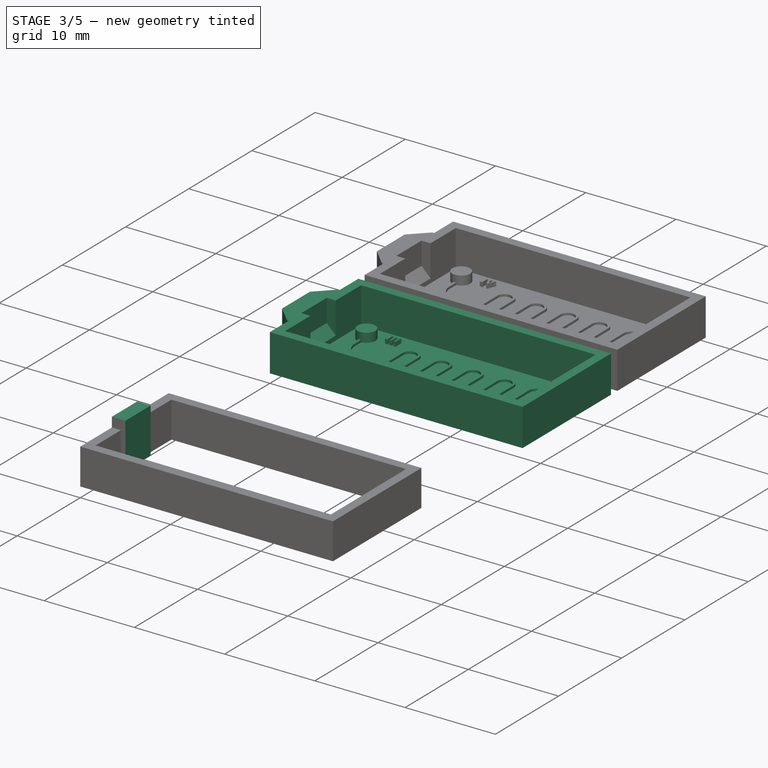
[diagram: stage 3 of 5 — iso view after this stage's code; geometry added in this stage tinted green]
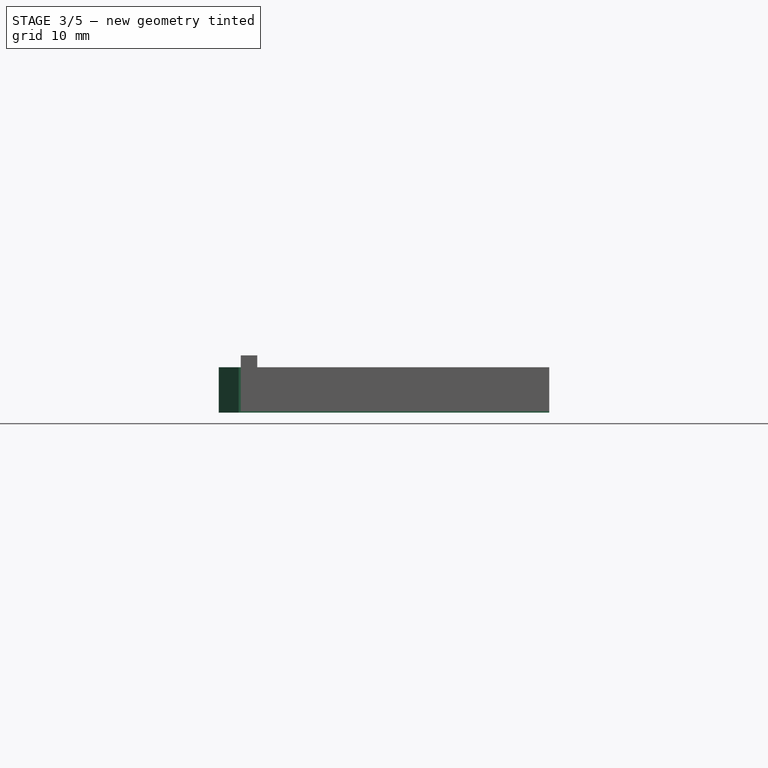
[diagram: stage 3 of 5 — front view after this stage's code; geometry added in this stage tinted green]
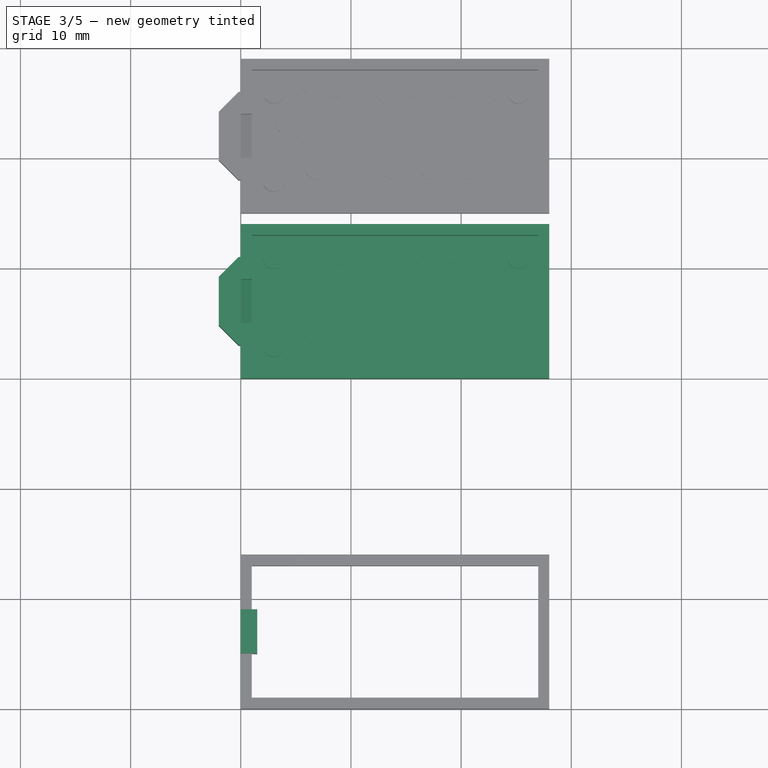
[diagram: stage 3 of 5 — top view after this stage's code; geometry added in this stage tinted green]
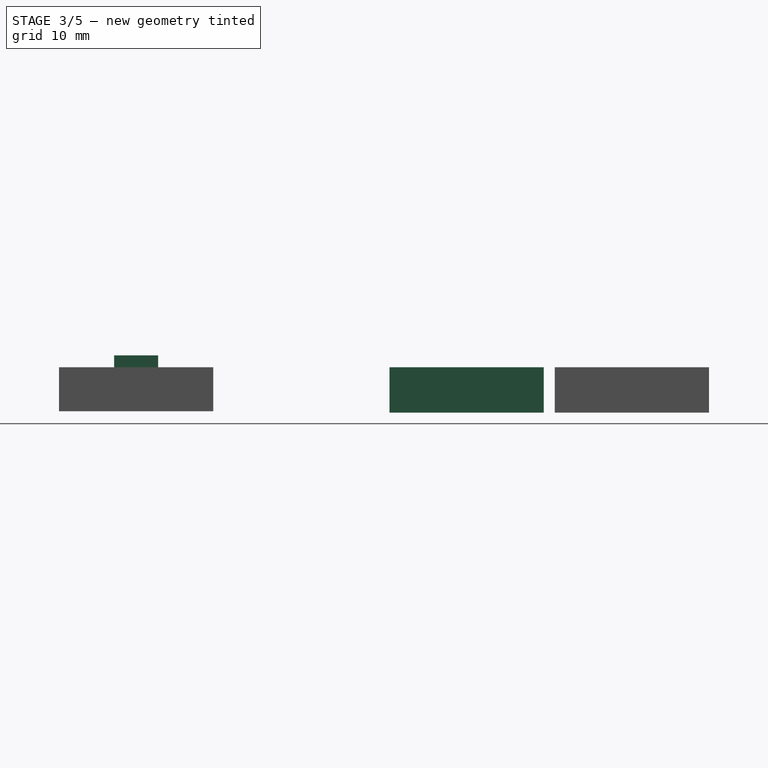
[diagram: stage 3 of 5 — right view after this stage's code; geometry added in this stage tinted green]
FEATURE [Sketcher::SketchObject] Sketch009
  Placement = pos=(0,0,0.125) rot=(0,0,1;0rad)
  sketch-geometry (4):
    g0: LineSegment StartX=0 StartY=13 StartZ=0 EndX=28 EndY=13 EndZ=0
    g1: LineSegment StartX=28 StartY=13 StartZ=0 EndX=28 EndY=14 EndZ=0
    g2: LineSegment StartX=28 StartY=14 StartZ=0 EndX=0 EndY=14 EndZ=0
    g3: LineSegment StartX=0 StartY=14 StartZ=0 EndX=0 EndY=13 EndZ=0
  constraints (12):
    c: Coincident(g0,g1)
    c: Coincident(g1,g2)
    c: Coincident(g2,g3)
    c: Coincident(g3,g0)
    c: Horizontal(g0)
    c: Horizontal(g2)
    c: Vertical(g1)
    c: Vertical(g3)
    c: PointOnObject(g0,g-2)
    c: Distance(g3) = 1
    c: Distance(g0) = 28
    c: DistanceY(g2) = 14
FEATURE [Sketcher::SketchObject] Sketch010
  Placement = pos=(0,0,0.125) rot=(0,0,1;0rad)
  sketch-geometry (4):
    g0: LineSegment StartX=0 StartY=0 StartZ=0 EndX=1 EndY=0 EndZ=0
    g1: LineSegment StartX=1 StartY=0 StartZ=0 EndX=1 EndY=14 EndZ=0
    g2: LineSegment StartX=1 StartY=14 StartZ=0 EndX=0 EndY=14 EndZ=0
    g3: LineSegment StartX=0 StartY=14 StartZ=0 EndX=0 EndY=0 EndZ=0
  constraints (12):
    c: Coincident(g0,g1)
    c: Horizontal(g0)
    c: Horizontal(g2)
    c: Vertical(g1)
    c: PointOnObject(g0,g-2)
    c: Coincident(g1,g2)
    c: DistanceX(g-1,g2) = 0
    c: Coincident(g3,g2)
    c: Coincident(g3,g0)
    c: DistanceY(g2) = 14
    c: DistanceY(g0) = 0
    c: DistanceX(g0,g0) = 1
FEATURE [Sketcher::SketchObject] Sketch011
  Placement = pos=(0,0,0.125) rot=(0,0,1;0rad)
  sketch-geometry (4):
    g0: LineSegment StartX=0 StartY=1 StartZ=0 EndX=28 EndY=1 EndZ=0
    g1: LineSegment StartX=28 StartY=0 StartZ=0 EndX=0 EndY=0 EndZ=0
    g2: LineSegment StartX=0 StartY=0 StartZ=0 EndX=0 EndY=1 EndZ=0
    g3: LineSegment StartX=28 StartY=0 StartZ=0 EndX=28 EndY=1 EndZ=0
  constraints (12):
    c: Coincident(g1,g2)
    c: Coincident(g2,g0)
    c: Horizontal(g0)
    c: Horizontal(g1)
    c: Vertical(g2)
    c: Distance(g2) = 1
    c: DistanceX(g0) = 28
    c: Coincident(g3,g1)
    c: Coincident(g3,g0)
    c: Vertical(g3)
    c: DistanceX(g0) = 0
    c: DistanceY(g1) = 0
FEATURE [Sketcher::SketchObject] Sketch012
  Placement = pos=(0,0,0.125) rot=(0,0,1;0rad)
  sketch-geometry (4):
    g0: LineSegment StartX=28 StartY=0 StartZ=0 EndX=27 EndY=0 EndZ=0
    g1: LineSegment StartX=27 StartY=0 StartZ=0 EndX=27 EndY=14 EndZ=0
    g2: LineSegment StartX=27 StartY=14 StartZ=0 EndX=28 EndY=14 EndZ=0
    g3: LineSegment StartX=28 StartY=14 StartZ=0 EndX=28 EndY=0 EndZ=0
  constraints (12):
    c: Coincident(g0,g1)
    c: Coincident(g1,g2)
    c: Coincident(g2,g3)
    c: Coincident(g3,g0)
    c: Horizontal(g0)
    c: Horizontal(g2)
    c: Vertical(g1)
    c: Vertical(g3)
    c: DistanceY(g0) = 0
    c: Distance(g0) = 1
    c: DistanceX(g0) = 28
    c: DistanceY(g2) = 14
FEATURE [PartDesign::Pad] Pad009
  Length = 4
  Length2 = 100
  Placement = pos=(0,0,0.125) rot=(0,0,1;0rad)
  Sketch = -> Sketch009
  Type = 0
FEATURE [PartDesign::Pad] Pad010
  Length = 4
  Length2 = 100
  Placement = pos=(0,0,0.125) rot=(0,0,1;0rad)
  Sketch = -> Sketch010
  Type = 0
FEATURE [PartDesign::Pad] Pad011
  Length = 4
  Length2 = 100
  Placement = pos=(0,0,0.125) rot=(0,0,1;0rad)
  Sketch = -> Sketch011
  Type = 0
FEATURE [PartDesign::Pad] Pad012
  Length = 4
  Length2 = 100
  Placement = pos=(0,0,0.125) rot=(0,0,1;0rad)
  Sketch = -> Sketch012
  Type = 0
FEATURE [Part::MultiFuse] Fusion021
  Shapes = -> [Pad009,Pad010,Pad011,Pad012]
FEATURE [Part::Box] Box004  label="Cube004"
  Height = 5
  Length = 1.5
  Placement = pos=(0,5,0.2) rot=(0,0,1;0rad)
  Width = 4
FEATURE [Part::Chamfer] Chamfer002
  Base = -> Box004
  Edges = 1 edges r=1.4: [Edge4]
FEATURE [Part::Box] Box006  label="Cube006"
  Height = 0.125
  Length = 28
  Width = 14
FEATURE [Part::Box] Box008  label="Cube008"
  Height = 4.125
  Length = 2
  Placement = pos=(-2,3,0) rot=(0,0,1;0rad)
  Width = 8
FEATURE [Part::Chamfer] Chamfer005
  Base = -> Box008
  Edges = 2 edges r=1.8: [Edge1,Edge3]
FEATURE [Part::Part2DObjectPython] ShapeString003  # Draft 2D object (typed FeaturePython)
  FontFile = <userpath>/ownCloud/3D Print Files/Standard_Prints/Eiffel_Tower/SLA Optimized (Form 1+)/CAMBRIAB.TTF
  Placement = pos=(5,11,0.125) rot=(0,0,1;0rad)
  Size = 1
  String = III
  Support = -> Fusion026
  Tracking = 0
FEATURE [Part::Extrusion] Extrude004
  Base = -> ShapeString003
  Dir = (0,0,0.5)
  Solid = false
FEATURE [Part::Extrusion] Extrude005
  Base = -> ShapeString003
  Dir = (0,0,0.5)
  Solid = false
FEATURE [Part::MultiFuse] Fusion027
  Shapes = -> [Extrude004,Extrude005,Fusion026]
FEATURE [Part::MultiFuse] Fusion028
  Placement = pos=(0,30,0) rot=(0,0,1;0rad)
  Shapes = -> [Fusion027,Box006,Chamfer005,Cut002]
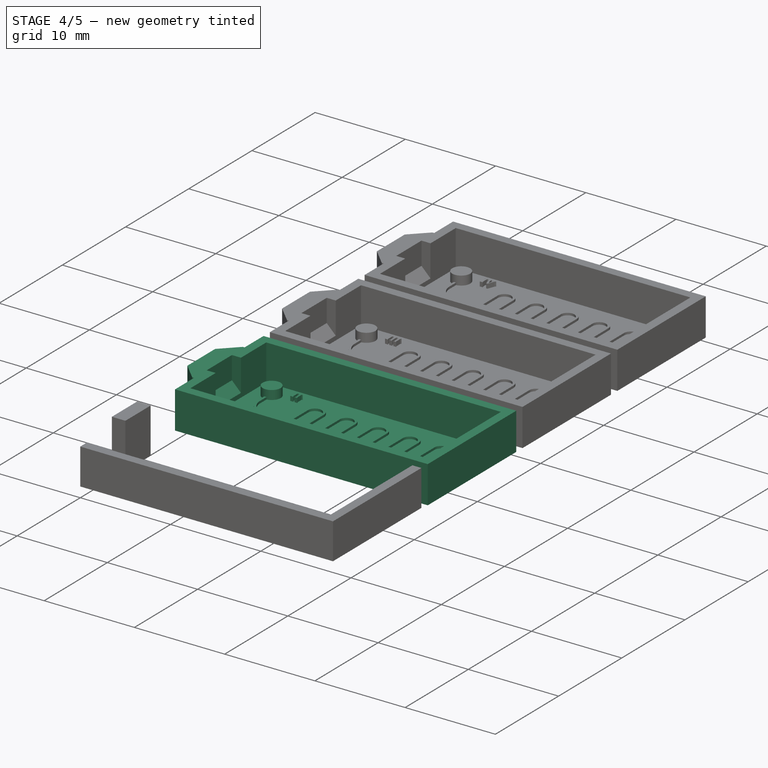
[diagram: stage 4 of 5 — iso view after this stage's code; geometry added in this stage tinted green]
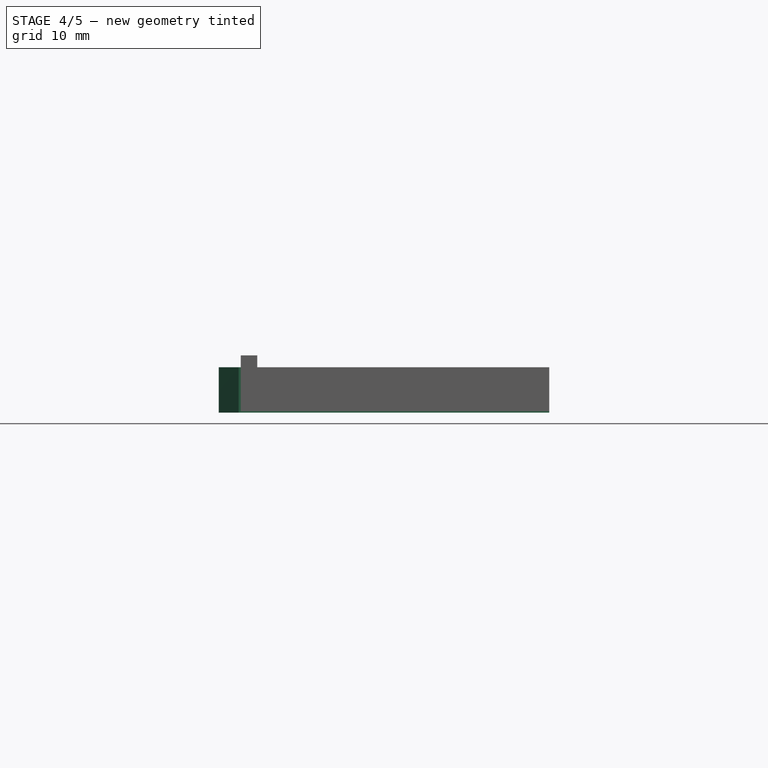
[diagram: stage 4 of 5 — front view after this stage's code; geometry added in this stage tinted green]
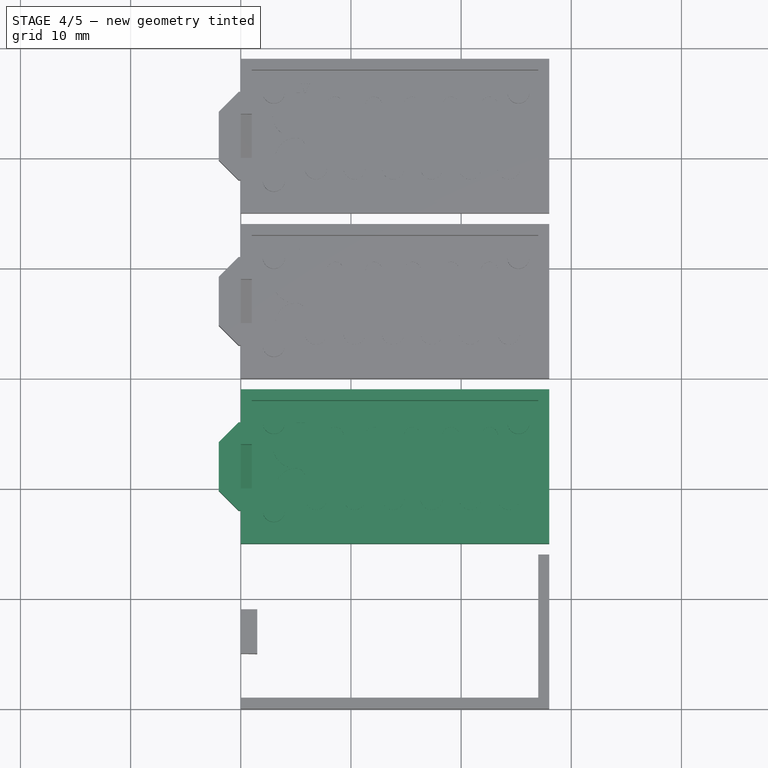
[diagram: stage 4 of 5 — top view after this stage's code; geometry added in this stage tinted green]
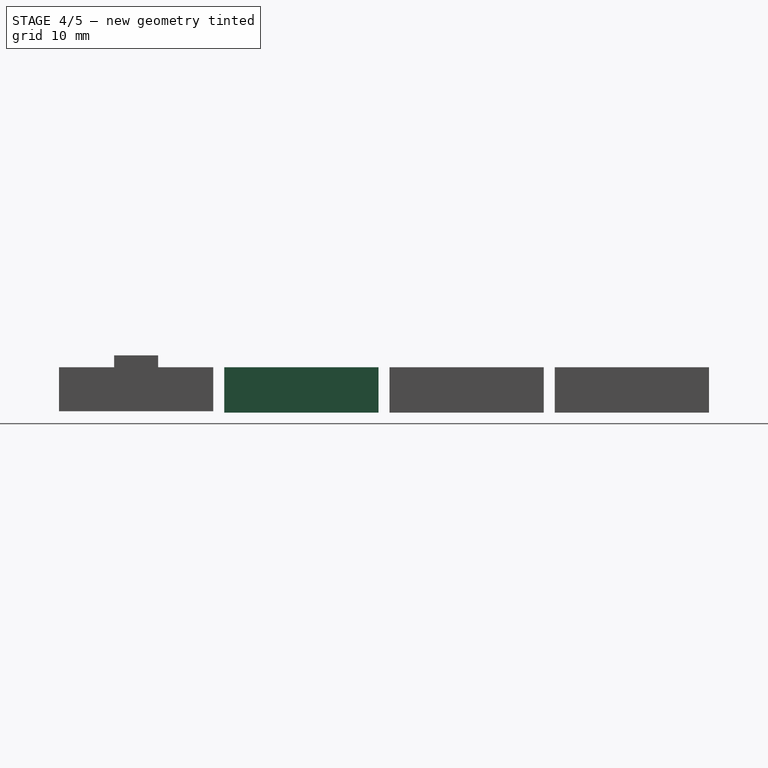
[diagram: stage 4 of 5 — right view after this stage's code; geometry added in this stage tinted green]
FEATURE [PartDesign::Pad] Pad005
  Length = 4
  Length2 = 100
  Placement = pos=(0,0,0.125) rot=(0,0,1;0rad)
  Sketch = -> Sketch005
  Type = 0
FEATURE [PartDesign::Pad] Pad006
  Length = 4
  Length2 = 100
  Placement = pos=(0,0,0.125) rot=(0,0,1;0rad)
  Sketch = -> Sketch006
  Type = 0
FEATURE [Part::Box] Box001  label="Cube001"
  Height = 5
  Length = 1.5
  Placement = pos=(0,5,0.2) rot=(0,0,1;0rad)
  Width = 4
FEATURE [Part::Chamfer] Chamfer
  Base = -> Box001
  Edges = 1 edges r=1.4: [Edge4]
FEATURE [Part::Box] Box003  label="Cube003"
  Height = 0.125
  Length = 28
  Width = 14
FEATURE [Part::Box] Box005  label="Cube005"
  Height = 4.125
  Length = 2
  Placement = pos=(-2,3,0) rot=(0,0,1;0rad)
  Width = 8
FEATURE [Part::Chamfer] Chamfer003
  Base = -> Box005
  Edges = 2 edges r=1.8: [Edge1,Edge3]
FEATURE [Sketcher::SketchObject] Sketch013
  Placement = pos=(0,0,0.125) rot=(0,0,1;0rad)
  sketch-geometry (63):
    g0: ArcOfCircle CenterX=3 CenterY=11 CenterZ=0 NormalX=0 NormalY=0 NormalZ=1 Radius=1 StartAngle=4.83772 EndAngle=10.8702
    g1: ArcOfCircle CenterX=3 CenterY=3 CenterZ=0 NormalX=0 NormalY=0 NormalZ=1 Radius=1 StartAngle=1.69612 EndAngle=7.72865
    g2: LineSegment StartX=2.875 StartY=10.0078 StartZ=0 EndX=2.875 EndY=9.00784 EndZ=0
    g3: LineSegment StartX=3.125 StartY=10.0078 StartZ=0 EndX=3.125 EndY=9.00784 EndZ=0
    g4: LineSegment StartX=3.125 StartY=3.99216 StartZ=0 EndX=3.125 EndY=4.99216 EndZ=0
    g5: LineSegment StartX=2.875 StartY=3.99216 StartZ=0 EndX=2.875 EndY=4.99216 EndZ=0
    g6: LineSegment StartX=5.00784 StartY=7.125 StartZ=0 EndX=5.075 EndY=7.125 EndZ=0
    g7: LineSegment StartX=5.00784 StartY=6.875 StartZ=0 EndX=5.075 EndY=6.875 EndZ=0
    g8: ArcOfCircle CenterX=5.00784 CenterY=9.00784 CenterZ=0 NormalX=0 NormalY=0 NormalZ=1 Radius=2.13284 StartAngle=3.14159 EndAngle=4.36833
    g9: ArcOfCircle CenterX=5.00784 CenterY=9.00784 CenterZ=0 NormalX=0 NormalY=0 NormalZ=1 Radius=1.88284 StartAngle=3.14159 EndAngle=4.71239
    g10: ArcOfCircle CenterX=5.00784 CenterY=4.99216 CenterZ=0 NormalX=0 NormalY=0 NormalZ=1 Radius=2.13284 StartAngle=1.91486 EndAngle=3.14159
    g11: ArcOfCircle CenterX=5.00784 CenterY=4.99216 CenterZ=0 NormalX=0 NormalY=0 NormalZ=1 Radius=1.88284 StartAngle=1.5708 EndAngle=3.14159
    g12: LineSegment StartX=6.075 StartY=6.125 StartZ=0 EndX=6.075 EndY=4.125 EndZ=0
    g13: LineSegment StartX=5.825 StartY=6.125 StartZ=0 EndX=5.825 EndY=4.125 EndZ=0
    g14: LineSegment StartX=7.825 StartY=4.125 StartZ=0 EndX=7.825 EndY=9.875 EndZ=0
    g15: LineSegment StartX=7.575 StartY=4.125 StartZ=0 EndX=7.575 EndY=9.875 EndZ=0
    g16: ArcOfCircle CenterX=5.075 CenterY=6.125 CenterZ=0 NormalX=0 NormalY=0 NormalZ=1 Radius=0.75 StartAngle=0 EndAngle=1.5708
    g17: ArcOfCircle CenterX=5.075 CenterY=6.125 CenterZ=0 NormalX=0 NormalY=0 NormalZ=1 Radius=1 StartAngle=0 EndAngle=1.5708
    g18: LineSegment [constr] StartX=3.94873 StartY=6.84345 StartZ=0 EndX=4.07287 EndY=6.62645 EndZ=0
    g19: ArcOfCircle CenterX=6.825 CenterY=4.125 CenterZ=0 NormalX=0 NormalY=0 NormalZ=1 Radius=1 StartAngle=3.14159 EndAngle=6.28319
    g20: ArcOfCircle CenterX=6.825 CenterY=4.125 CenterZ=0 NormalX=0 NormalY=0 NormalZ=1 Radius=0.75 StartAngle=3.14159 EndAngle=6.28319
    g21: LineSegment StartX=9.325 StartY=9.875 StartZ=0 EndX=9.325 EndY=4.125 EndZ=0
    g22: LineSegment StartX=9.575 StartY=9.875 StartZ=0 EndX=9.575 EndY=4.125 EndZ=0
    g23: ArcOfCircle CenterX=8.575 CenterY=9.875 CenterZ=0 NormalX=0 NormalY=0 NormalZ=1 Radius=1 StartAngle=0 EndAngle=3.14159
    g24: ArcOfCircle CenterX=8.575 CenterY=9.875 CenterZ=0 NormalX=0 NormalY=0 NormalZ=1 Radius=0.75 StartAngle=0 EndAngle=3.14159
    g25: LineSegment StartX=11.075 StartY=4.125 StartZ=0 EndX=11.075 EndY=9.875 EndZ=0
    g26: LineSegment StartX=11.325 StartY=4.125 StartZ=0 EndX=11.325 EndY=9.875 EndZ=0
    g27: ArcOfCircle CenterX=12.075 CenterY=9.875 CenterZ=0 NormalX=0 NormalY=0 NormalZ=1 Radius=0.75 StartAngle=4.292e-09 EndAngle=3.14159
    g28: ArcOfCircle CenterX=12.075 CenterY=9.875 CenterZ=0 NormalX=0 NormalY=0 NormalZ=1 Radius=1 StartAngle=3.219e-09 EndAngle=3.14159
    g29: LineSegment StartX=12.825 StartY=9.875 StartZ=0 EndX=12.825 EndY=4.125 EndZ=0
    g30: LineSegment StartX=13.075 StartY=9.875 StartZ=0 EndX=13.075 EndY=4.125 EndZ=0
    g31: ArcOfCircle CenterX=13.825 CenterY=4.125 CenterZ=0 NormalX=0 NormalY=0 NormalZ=1 Radius=0.75 StartAngle=3.14159 EndAngle=6.28319
    g32: ArcOfCircle CenterX=13.825 CenterY=4.125 CenterZ=0 NormalX=0 NormalY=0 NormalZ=1 Radius=1 StartAngle=3.14159 EndAngle=6.28319
    g33: LineSegment StartX=14.575 StartY=4.125 StartZ=0 EndX=14.575 EndY=9.875 EndZ=0
    g34: LineSegment StartX=14.825 StartY=4.125 StartZ=0 EndX=14.825 EndY=9.875 EndZ=0
    g35: LineSegment StartX=16.575 StartY=9.875 StartZ=0 EndX=16.575 EndY=4.125 EndZ=0
    g36: LineSegment StartX=16.325 StartY=9.875 StartZ=0 EndX=16.325 EndY=4.125 EndZ=0
    g37: ArcOfCircle CenterX=17.325 CenterY=4.125 CenterZ=0 NormalX=0 NormalY=0 NormalZ=1 Radius=1 StartAngle=3.14159 EndAngle=6.28319
    g38: ArcOfCircle CenterX=17.325 CenterY=4.125 CenterZ=0 NormalX=0 NormalY=0 NormalZ=1 Radius=0.75 StartAngle=3.14159 EndAngle=6.28319
    g39: LineSegment StartX=18.075 StartY=4.125 StartZ=0 EndX=18.075 EndY=9.875 EndZ=0
    g40: LineSegment StartX=18.325 StartY=4.125 StartZ=0 EndX=18.325 EndY=9.875 EndZ=0
    g41: ArcOfCircle CenterX=19.075 CenterY=9.875 CenterZ=0 NormalX=0 NormalY=0 NormalZ=1 Radius=1 StartAngle=0 EndAngle=3.14159
    g42: ArcOfCircle CenterX=19.075 CenterY=9.875 CenterZ=0 NormalX=0 NormalY=0 NormalZ=1 Radius=0.75 StartAngle=0 EndAngle=3.14159
    g43: LineSegment StartX=20.075 StartY=9.875 StartZ=0 EndX=20.075 EndY=4.125 EndZ=0
    g44: LineSegment StartX=19.825 StartY=9.875 StartZ=0 EndX=19.825 EndY=4.125 EndZ=0
    g45: ArcOfCircle CenterX=20.825 CenterY=4.125 CenterZ=0 NormalX=0 NormalY=0 NormalZ=1 Radius=1 StartAngle=3.14159 EndAngle=6.28319
    g46: ArcOfCircle CenterX=20.825 CenterY=4.125 CenterZ=0 NormalX=0 NormalY=0 NormalZ=1 Radius=0.75 StartAngle=3.14159 EndAngle=6.28319
    g47: LineSegment StartX=21.825 StartY=4.125 StartZ=0 EndX=21.825 EndY=9.875 EndZ=0
    g48: ArcOfCircle CenterX=12.5863 CenterY=9.625 CenterZ=0 NormalX=0 NormalY=0 NormalZ=1 Radius=0 StartAngle=0 EndAngle=3.14159
    g49: LineSegment StartX=23.575 StartY=9.875 StartZ=0 EndX=23.575 EndY=4.125 EndZ=0
    g50: ArcOfCircle CenterX=24.325 CenterY=4.125 CenterZ=0 NormalX=0 NormalY=0 NormalZ=1 Radius=0.75 StartAngle=3.14159 EndAngle=6.28319
    g51: ArcOfCircle CenterX=24.325 CenterY=4.125 CenterZ=0 NormalX=0 NormalY=0 NormalZ=1 Radius=1 StartAngle=3.14159 EndAngle=6.28319
    g52: LineSegment StartX=25.075 StartY=4.125 StartZ=0 EndX=25.075 EndY=10.0078 EndZ=0
    g53: LineSegment StartX=25.325 StartY=4.125 StartZ=0 EndX=25.325 EndY=10.0078 EndZ=0
    g54: ArcOfCircle CenterX=25.2 CenterY=11 CenterZ=0 NormalX=0 NormalY=0 NormalZ=1 Radius=1 StartAngle=4.83772 EndAngle=10.8702
    g55: LineSegment StartX=23.325 StartY=4.125 StartZ=0 EndX=23.325 EndY=9.875 EndZ=0
    g56: LineSegment StartX=21.575 StartY=4.125 StartZ=0 EndX=21.575 EndY=9.875 EndZ=0
    g57: ArcOfCircle CenterX=10.325 CenterY=4.125 CenterZ=0 NormalX=0 NormalY=0 NormalZ=1 Radius=0.75 StartAngle=3.14159 EndAngle=6.28319
    g58: ArcOfCircle CenterX=10.325 CenterY=4.125 CenterZ=0 NormalX=0 NormalY=0 NormalZ=1 Radius=1 StartAngle=3.14159 EndAngle=6.28319
    g59: ArcOfCircle CenterX=15.575 CenterY=9.875 CenterZ=0 NormalX=0 NormalY=0 NormalZ=1 Radius=0.75 StartAngle=5.819e-09 EndAngle=3.14159
    g60: ArcOfCircle CenterX=15.575 CenterY=9.875 CenterZ=0 NormalX=0 NormalY=0 NormalZ=1 Radius=1 StartAngle=4.365e-09 EndAngle=3.14159
    g61: ArcOfCircle CenterX=22.575 CenterY=9.875 CenterZ=0 NormalX=0 NormalY=0 NormalZ=1 Radius=0.75 StartAngle=6.28319 EndAngle=9.42478
    g62: ArcOfCircle CenterX=22.575 CenterY=9.875 CenterZ=0 NormalX=0 NormalY=0 NormalZ=1 Radius=1 StartAngle=6.28319 EndAngle=9.42478
  constraints (197):
    c: DistanceX(g0,g0) = 0.25
    c: DistanceX(g1,g1) = 0.25
    c: DistanceX(g0,g1) = 0
    c: DistanceX(g25,g26) = 0.25
    c: Radius(g0) = 1
    c: Equal(g0,g1)
    c: DistanceX(g1,g0) = 0
    c: Coincident(g2,g0)
    c: Coincident(g3,g0)
    c: Coincident(g4,g1)
    c: Coincident(g5,g1)
    c: Tangent(g2,g8) = -1.5708
    c: Tangent(g3,g9) = -1.5708
    c: Tangent(g6,g9) = -1.5708
    c: Tangent(g5,g10) = 1.5708
    c: Tangent(g4,g11) = 1.5708
    c: Tangent(g7,g11) = 1.5708
    c: Coincident(g10,g8)
    c: Horizontal(g7)
    c: Horizontal(g6)
    c: Parallel(g2,g3)
    c: Parallel(g5,g4)
    c: Vertical(g5)
    c: Vertical(g2)
    c: Equal(g7,g6)
    c: DistanceX(g1,g1) = 0.125
    c: DistanceY(g1) = 3
    c: DistanceX(g1) = 3
    c: DistanceY(g5,g5) = 1
    c: Equal(g2,g5)
    c: DistanceY(g1,g0) = 8
    c: DistanceY(g1,g8) = 4
    c: Equal(g5,g4)
    c: Equal(g3,g2)
    c: Tangent(g7,g16) = 1.5708
    c: Tangent(g13,g16) = 1.5708
    c: Tangent(g6,g17) = 1.5708
    c: Tangent(g12,g17) = 1.5708
    c: DistanceY(g7,g6) = 0.25
    c: DistanceY(g7,g8) = 0.125
    c: DistanceX(g13,g12) = 0.25
    c: PointOnObject(g18,g10)
    c: PointOnObject(g18,g11)
    c: Perpendicular(g10,g18)
    c: Perpendicular(g11,g18)
    c: Vertical(g26)
    c: Vertical(g22)
    c: Vertical(g14)
    c: Vertical(g12)
    c: DistanceX(g15,g14) = 0.25
    c: DistanceX(g21,g22) = 0.25
    c: DistanceY(g13,g13) = 2
    c: DistanceX(g18) = 3.94873
    c: Coincident(g28,g27)
    c: Coincident(g28,g25)
    c: Coincident(g27,g26)
    c: DistanceX(g27,g28) = 0.25
    c: Coincident(g29,g27)
    c: Vertical(g29)
    c: Coincident(g30,g28)
    c: Vertical(g30)
    c: Coincident(g31,g30)
    c: Coincident(g32,g31)
    c: Coincident(g32,g29)
    c: Coincident(g33,g31)
    c: Vertical(g33)
    c: Coincident(g34,g32)
    c: Vertical(g34)
    c: Vertical(g35)
    c: Vertical(g36)
    c: Coincident(g37,g36)
    c: Coincident(g38,g37)
    c: Coincident(g38,g35)
    c: Coincident(g39,g38)
    c: Vertical(g39)
    c: Coincident(g40,g37)
    c: Vertical(g40)
    c: Coincident(g41,g39)
    c: Coincident(g42,g41)
    c: Coincident(g42,g40)
    c: Coincident(g43,g41)
    c: Vertical(g43)
    c: Coincident(g44,g42)
    c: Vertical(g44)
    c: Coincident(g45,g44)
    c: Coincident(g46,g45)
    c: Coincident(g46,g43)
    c: Coincident(g47,g45)
    c: Vertical(g47)
    c: Vertical(g49)
    c: Coincident(g50,g49)
    c: Coincident(g51,g50)
    c: Coincident(g52,g50)
    c: Vertical(g52)
    c: Coincident(g53,g51)
    c: Vertical(g53)
    c: DistanceY(g53,g52) = 0
    c: Coincident(g54,g52)
    c: Coincident(g54,g53)
    c: DistanceY(g0,g54) = 0
    c: Equal(g54,g0)
    c: DistanceY(g15,g14) = 0
    c: DistanceY(g21,g22) = 0
    c: DistanceY(g25,g26) = 0
    c: DistanceY(g27,g28) = 0
    c: DistanceY(g35,g36) = 0
    c: DistanceY(g40,g39) = 0
    c: DistanceY(g41,g42) = 0
    c: DistanceY(g38,g37) = 0
    c: DistanceY(g36,g35) = 0
    c: DistanceY(g32,g31) = 0
    c: DistanceY(g30,g29) = 0
    c: DistanceY(g26,g25) = 0
    c: DistanceY(g22,g21) = 0
    c: DistanceY(g14,g15) = 0
    c: DistanceY(g12,g13) = 0
    c: DistanceY(g51,g49) = 0
    c: DistanceY(g50,g51) = 0
    c: DistanceX(g50,g51) = 0.25
    c: DistanceX(g49,g50) = 1.5
    c: Coincident(g55,g51)
    c: Vertical(g55)
    c: DistanceY(g55,g49) = 0
    c: DistanceY(g46,g45) = 0
    c: DistanceY(g43,g44) = 0
    c: DistanceX(g30,g31) = 1.5
    c: DistanceX(g26,g27) = 1.5
    c: Vertical(g56)
    c: Coincident(g56,g46)
    c: DistanceY(g47,g56) = 0
    c: Vertical(g25)
    c: DistanceX(g22,g25) = 1.5
    c: DistanceX(g14,g21) = 1.5
    c: DistanceX(g12,g15) = 1.5
    c: Coincident(g57,g25)
    c: Coincident(g57,g22)
    c: Coincident(g58,g57)
    c: Coincident(g58,g26)
    c: DistanceX(g36,g35) = 0.25
    c: Coincident(g59,g36)
    c: Coincident(g59,g34)
    c: Coincident(g60,g59)
    c: Coincident(g60,g35)
    c: DistanceX(g47,g55) = 1.5
    c: Coincident(g61,g47)
    c: Coincident(g62,g61)
    c: Coincident(g62,g49)
    c: Coincident(g62,g56)
    c: DistanceX(g43,g46) = 1.5
    c: DistanceX(g35,g38) = 1.5
    c: DistanceX(g34,g36) = 1.5
    c: DistanceX(g40,g42) = 1.5
    c: DistanceY(g50,g50) = 0
    c: DistanceY(g50,g49) = 0
    c: DistanceY(g45,g51) = 0
    c: DistanceY(g46,g45) = 0
    c: DistanceY(g43,g45) = 0
    c: DistanceY(g37,g44) = 0
    c: DistanceY(g37,g38) = 0
    c: DistanceY(g37,g35) = 0
    c: DistanceY(g36,g32) = 0
    c: DistanceY(g31,g31) = 0
    c: DistanceY(g31,g30) = 0
    c: DistanceY(g26,g29) = 0
    c: DistanceY(g57,g25) = 0
    c: DistanceY(g57,g22) = 0
    c: Coincident(g21,g58)
    c: Coincident(g23,g22)
    c: Coincident(g24,g21)
    c: Coincident(g24,g14)
    c: Coincident(g23,g15)
    c: Coincident(g14,g19)
    c: Coincident(g15,g20)
    c: Coincident(g12,g20)
    c: Coincident(g13,g19)
    c: Coincident(g20,g19)
    c: Coincident(g23,g24)
    c: DistanceY(g14,g21) = 0
    c: DistanceY(g14,g23) = 0
    c: DistanceY(g23,g21) = 0
    c: DistanceY(g25,g22) = 0
    c: DistanceY(g27,g26) = 0
    c: DistanceY(g28,g60) = 0
    c: Coincident(g33,g60)
    c: DistanceY(g34,g33) = 0
    c: DistanceY(g34,g59) = 0
    c: DistanceY(g35,g39) = 0
    c: DistanceY(g41,g40) = 0
    c: DistanceY(g41,g42) = 0
    c: DistanceY(g41,g56) = 0
    c: DistanceY(g61,g47) = 0
    c: Coincident(g55,g61)
    c: DistanceY(g19,g12) = 0
    c: DistanceY(g15,g15) = 5.75
    c: DistanceY(g16,g7) = 0.75
    c: DistanceY(g19,g15) = 0
    c: DistanceX(g0,g54) = 22.2
FEATURE [PartDesign::Pad] Pad013
  Length = 0.25
  Length2 = 100
  Placement = pos=(0,0,0.125) rot=(0,0,1;0rad)
  Sketch = -> Sketch013
  Type = 0
FEATURE [Sketcher::SketchObject] Sketch014
  Placement = pos=(0,0,0.125) rot=(0,0,1;0rad)
  sketch-geometry (3):
    g0: Circle CenterX=3 CenterY=3 CenterZ=0 NormalX=0 NormalY=0 NormalZ=1 Radius=1
    g1: Circle CenterX=3 CenterY=11 CenterZ=0 NormalX=0 NormalY=0 NormalZ=1 Radius=1
    g2: Circle CenterX=25.2 CenterY=11 CenterZ=0 NormalX=0 NormalY=0 NormalZ=1 Radius=1
  constraints (9):
    c: DistanceX(g1,g0) = 0
    c: DistanceY(g0,g1) = 8
    c: DistanceX(g1,g2) = 22.2
    c: DistanceY(g1,g2) = 0
    c: DistanceY(g0) = 3
    c: DistanceX(g0) = 3
    c: Radius(g0) = 1
    c: Equal(g0,g1)
    c: Equal(g0,g2)
FEATURE [PartDesign::Pad] Pad014
  Length = 1
  Length2 = 100
  Placement = pos=(0,0,0.125) rot=(0,0,1;0rad)
  Sketch = -> Sketch014
  Type = 0
FEATURE [Part::MultiFuse] Fusion022
  Shapes = -> [Pad014,Pad013]
FEATURE [Part::Part2DObjectPython] ShapeString002  # Draft 2D object (typed FeaturePython)
  FontFile = <userpath>/ownCloud/3D Print Files/Standard_Prints/Eiffel_Tower/SLA Optimized (Form 1+)/CAMBRIAB.TTF
  Placement = pos=(5,11,0.125) rot=(0,0,1;0rad)
  Size = 1
  String = II
  Support = -> Fusion022
  Tracking = 0
FEATURE [Part::Extrusion] Extrude002
  Base = -> ShapeString002
  Dir = (0,0,0.5)
  Solid = false
FEATURE [Part::Extrusion] Extrude003
  Base = -> ShapeString002
  Dir = (0,0,0.5)
  Solid = false
FEATURE [Part::MultiFuse] Fusion023
  Shapes = -> [Extrude002,Extrude003,Fusion022]
FEATURE [Part::Cut] Cut001
  Base = -> Fusion021
  Tool = -> Chamfer002
FEATURE [Part::MultiFuse] Fusion024
  Placement = pos=(0,15,0) rot=(0,0,1;0rad)
  Shapes = -> [Fusion023,Box003,Chamfer003,Cut001]
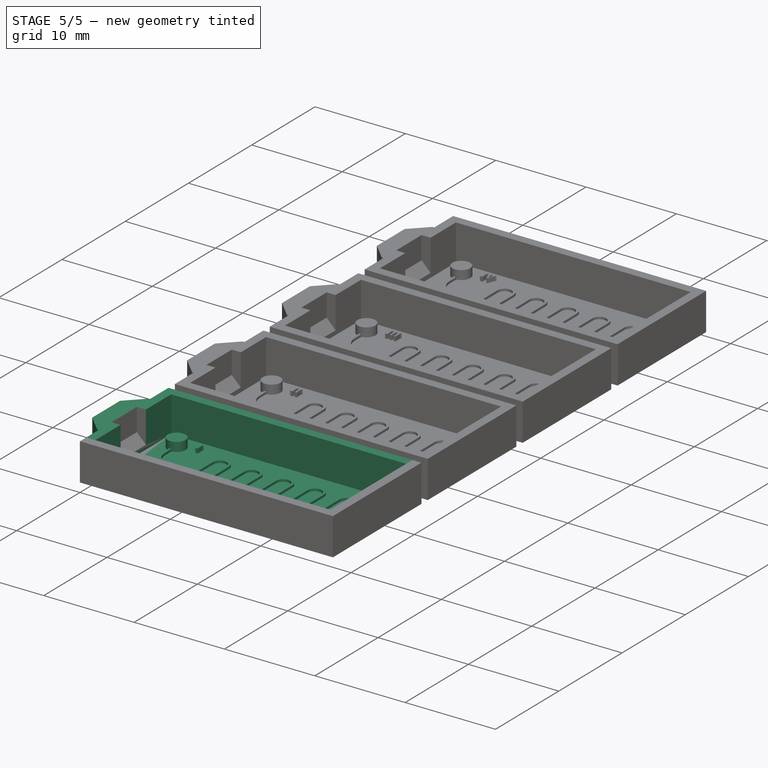
[diagram: stage 5 of 5 — iso view after this stage's code; geometry added in this stage tinted green]
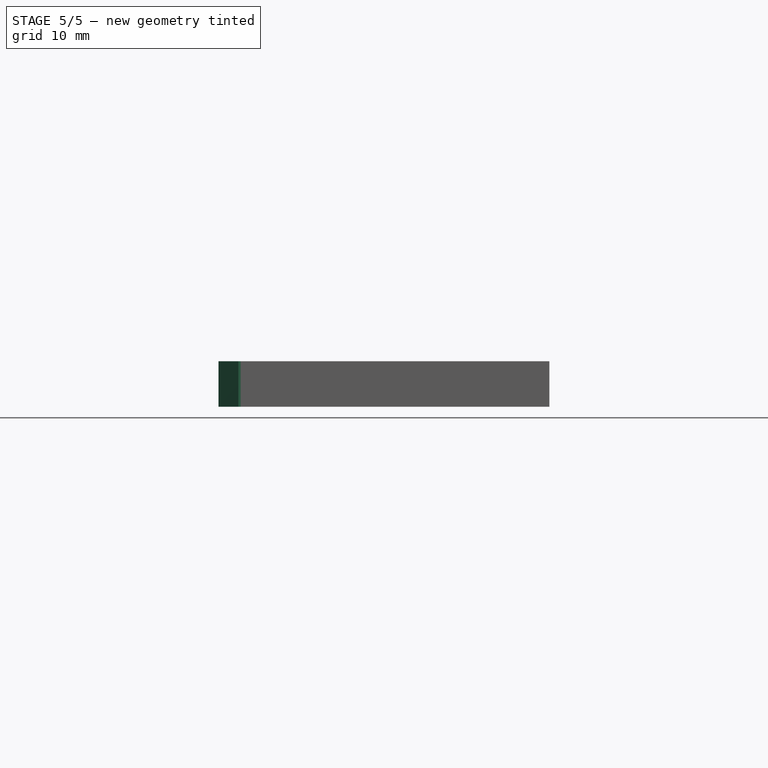
[diagram: stage 5 of 5 — front view after this stage's code; geometry added in this stage tinted green]
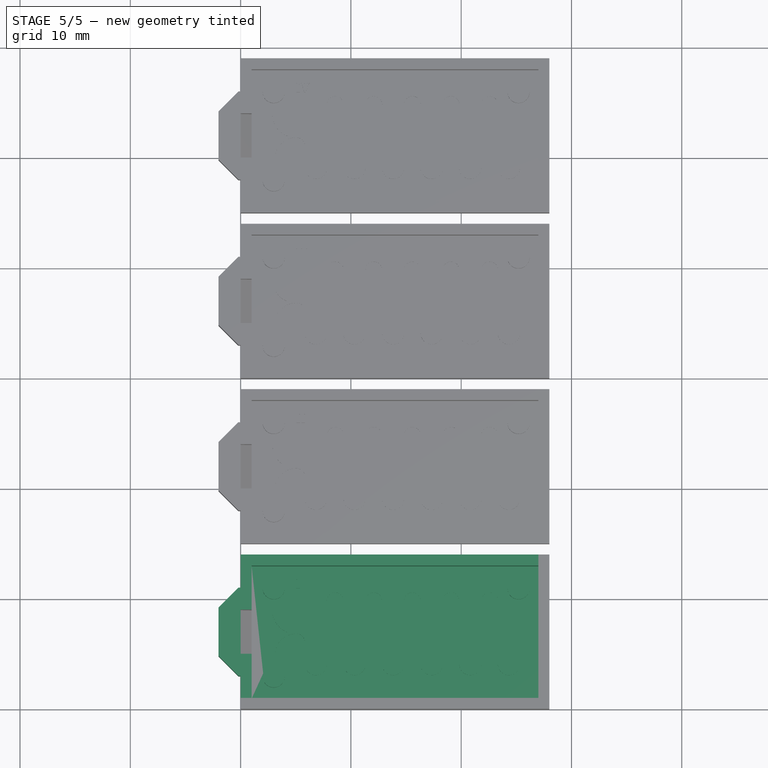
[diagram: stage 5 of 5 — top view after this stage's code; geometry added in this stage tinted green]
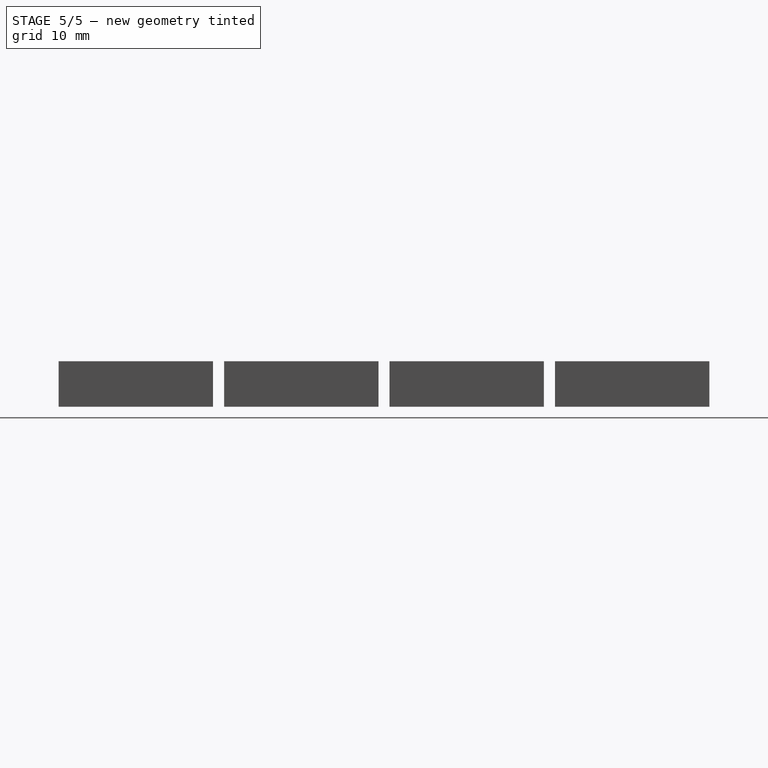
[diagram: stage 5 of 5 — right view after this stage's code; geometry added in this stage tinted green]
FEATURE [Part::Box] Box  label="Cube"
  Height = 0.125
  Length = 28
  Width = 14
FEATURE [Sketcher::SketchObject] Sketch003
  Placement = pos=(0,0,0.125) rot=(0,0,1;0rad)
  sketch-geometry (4):
    g0: LineSegment StartX=0 StartY=13 StartZ=0 EndX=28 EndY=13 EndZ=0
    g1: LineSegment StartX=28 StartY=13 StartZ=0 EndX=28 EndY=14 EndZ=0
    g2: LineSegment StartX=28 StartY=14 StartZ=0 EndX=0 EndY=14 EndZ=0
    g3: LineSegment StartX=0 StartY=14 StartZ=0 EndX=0 EndY=13 EndZ=0
  constraints (12):
    c: Coincident(g0,g1)
    c: Coincident(g1,g2)
    c: Coincident(g2,g3)
    c: Coincident(g3,g0)
    c: Horizontal(g0)
    c: Horizontal(g2)
    c: Vertical(g1)
    c: Vertical(g3)
    c: PointOnObject(g0,g-2)
    c: Distance(g3) = 1
    c: Distance(g0) = 28
    c: DistanceY(g2) = 14
FEATURE [Sketcher::SketchObject] Sketch004
  Placement = pos=(0,0,0.125) rot=(0,0,1;0rad)
  sketch-geometry (4):
    g0: LineSegment StartX=0 StartY=0 StartZ=0 EndX=1 EndY=0 EndZ=0
    g1: LineSegment StartX=1 StartY=0 StartZ=0 EndX=1 EndY=14 EndZ=0
    g2: LineSegment StartX=1 StartY=14 StartZ=0 EndX=0 EndY=14 EndZ=0
    g3: LineSegment StartX=0 StartY=14 StartZ=0 EndX=0 EndY=0 EndZ=0
  constraints (12):
    c: Coincident(g0,g1)
    c: Horizontal(g0)
    c: Horizontal(g2)
    c: Vertical(g1)
    c: PointOnObject(g0,g-2)
    c: Coincident(g1,g2)
    c: DistanceX(g-1,g2) = 0
    c: Coincident(g3,g2)
    c: Coincident(g3,g0)
    c: DistanceY(g2) = 14
    c: DistanceY(g0) = 0
    c: DistanceX(g0,g0) = 1
FEATURE [Sketcher::SketchObject] Sketch005
  Placement = pos=(0,0,0.125) rot=(0,0,1;0rad)
  sketch-geometry (4):
    g0: LineSegment StartX=0 StartY=1 StartZ=0 EndX=28 EndY=1 EndZ=0
    g1: LineSegment StartX=28 StartY=0 StartZ=0 EndX=0 EndY=0 EndZ=0
    g2: LineSegment StartX=0 StartY=0 StartZ=0 EndX=0 EndY=1 EndZ=0
    g3: LineSegment StartX=28 StartY=0 StartZ=0 EndX=28 EndY=1 EndZ=0
  constraints (12):
    c: Coincident(g1,g2)
    c: Coincident(g2,g0)
    c: Horizontal(g0)
    c: Horizontal(g1)
    c: Vertical(g2)
    c: Distance(g2) = 1
    c: DistanceX(g0) = 28
    c: Coincident(g3,g1)
    c: Coincident(g3,g0)
    c: Vertical(g3)
    c: DistanceX(g0) = 0
    c: DistanceY(g1) = 0
FEATURE [Sketcher::SketchObject] Sketch006
  Placement = pos=(0,0,0.125) rot=(0,0,1;0rad)
  sketch-geometry (4):
    g0: LineSegment StartX=28 StartY=0 StartZ=0 EndX=27 EndY=0 EndZ=0
    g1: LineSegment StartX=27 StartY=0 StartZ=0 EndX=27 EndY=14 EndZ=0
    g2: LineSegment StartX=27 StartY=14 StartZ=0 EndX=28 EndY=14 EndZ=0
    g3: LineSegment StartX=28 StartY=14 StartZ=0 EndX=28 EndY=0 EndZ=0
  constraints (12):
    c: Coincident(g0,g1)
    c: Coincident(g1,g2)
    c: Coincident(g2,g3)
    c: Coincident(g3,g0)
    c: Horizontal(g0)
    c: Horizontal(g2)
    c: Vertical(g1)
    c: Vertical(g3)
    c: DistanceY(g0) = 0
    c: Distance(g0) = 1
    c: DistanceX(g0) = 28
    c: DistanceY(g2) = 14
FEATURE [PartDesign::Pad] Pad003
  Length = 4
  Length2 = 100
  Placement = pos=(0,0,0.125) rot=(0,0,1;0rad)
  Sketch = -> Sketch003
  Type = 0
FEATURE [PartDesign::Pad] Pad004
  Length = 4
  Length2 = 100
  Placement = pos=(0,0,0.125) rot=(0,0,1;0rad)
  Sketch = -> Sketch004
  Type = 0
FEATURE [Part::MultiFuse] Fusion001
  Shapes = -> [Pad003,Pad004,Pad005,Pad006]
FEATURE [Part::Box] Box002  label="Cube002"
  Height = 4.125
  Length = 2
  Placement = pos=(-2,3,0) rot=(0,0,1;0rad)
  Width = 8
FEATURE [Part::Chamfer] Chamfer001
  Base = -> Box002
  Edges = 2 edges r=1.8: [Edge1,Edge3]
FEATURE [Sketcher::SketchObject] Sketch007
  Placement = pos=(0,0,0.125) rot=(0,0,1;0rad)
  sketch-geometry (63):
    g0: ArcOfCircle CenterX=3 CenterY=11 CenterZ=0 NormalX=0 NormalY=0 NormalZ=1 Radius=1 StartAngle=4.83772 EndAngle=10.8702
    g1: ArcOfCircle CenterX=3 CenterY=3 CenterZ=0 NormalX=0 NormalY=0 NormalZ=1 Radius=1 StartAngle=1.69612 EndAngle=7.72865
    g2: LineSegment StartX=2.875 StartY=10.0078 StartZ=0 EndX=2.875 EndY=9.00784 EndZ=0
    g3: LineSegment StartX=3.125 StartY=10.0078 StartZ=0 EndX=3.125 EndY=9.00784 EndZ=0
    g4: LineSegment StartX=3.125 StartY=3.99216 StartZ=0 EndX=3.125 EndY=4.99216 EndZ=0
    g5: LineSegment StartX=2.875 StartY=3.99216 StartZ=0 EndX=2.875 EndY=4.99216 EndZ=0
    g6: LineSegment StartX=5.00784 StartY=7.125 StartZ=0 EndX=5.075 EndY=7.125 EndZ=0
    g7: LineSegment StartX=5.00784 StartY=6.875 StartZ=0 EndX=5.075 EndY=6.875 EndZ=0
    g8: ArcOfCircle CenterX=5.00784 CenterY=9.00784 CenterZ=0 NormalX=0 NormalY=0 NormalZ=1 Radius=2.13284 StartAngle=3.14159 EndAngle=4.36833
    g9: ArcOfCircle CenterX=5.00784 CenterY=9.00784 CenterZ=0 NormalX=0 NormalY=0 NormalZ=1 Radius=1.88284 StartAngle=3.14159 EndAngle=4.71239
    g10: ArcOfCircle CenterX=5.00784 CenterY=4.99216 CenterZ=0 NormalX=0 NormalY=0 NormalZ=1 Radius=2.13284 StartAngle=1.91486 EndAngle=3.14159
    g11: ArcOfCircle CenterX=5.00784 CenterY=4.99216 CenterZ=0 NormalX=0 NormalY=0 NormalZ=1 Radius=1.88284 StartAngle=1.5708 EndAngle=3.14159
    g12: LineSegment StartX=6.075 StartY=6.125 StartZ=0 EndX=6.075 EndY=4.125 EndZ=0
    g13: LineSegment StartX=5.825 StartY=6.125 StartZ=0 EndX=5.825 EndY=4.125 EndZ=0
    g14: LineSegment StartX=7.825 StartY=4.125 StartZ=0 EndX=7.825 EndY=9.875 EndZ=0
    g15: LineSegment StartX=7.575 StartY=4.125 StartZ=0 EndX=7.575 EndY=9.875 EndZ=0
    g16: ArcOfCircle CenterX=5.075 CenterY=6.125 CenterZ=0 NormalX=0 NormalY=0 NormalZ=1 Radius=0.75 StartAngle=0 EndAngle=1.5708
    g17: ArcOfCircle CenterX=5.075 CenterY=6.125 CenterZ=0 NormalX=0 NormalY=0 NormalZ=1 Radius=1 StartAngle=0 EndAngle=1.5708
    g18: LineSegment [constr] StartX=3.94873 StartY=6.84345 StartZ=0 EndX=4.07287 EndY=6.62645 EndZ=0
    g19: ArcOfCircle CenterX=6.825 CenterY=4.125 CenterZ=0 NormalX=0 NormalY=0 NormalZ=1 Radius=1 StartAngle=3.14159 EndAngle=6.28319
    g20: ArcOfCircle CenterX=6.825 CenterY=4.125 CenterZ=0 NormalX=0 NormalY=0 NormalZ=1 Radius=0.75 StartAngle=3.14159 EndAngle=6.28319
    g21: LineSegment StartX=9.325 StartY=9.875 StartZ=0 EndX=9.325 EndY=4.125 EndZ=0
    g22: LineSegment StartX=9.575 StartY=9.875 StartZ=0 EndX=9.575 EndY=4.125 EndZ=0
    g23: ArcOfCircle CenterX=8.575 CenterY=9.875 CenterZ=0 NormalX=0 NormalY=0 NormalZ=1 Radius=1 StartAngle=0 EndAngle=3.14159
    g24: ArcOfCircle CenterX=8.575 CenterY=9.875 CenterZ=0 NormalX=0 NormalY=0 NormalZ=1 Radius=0.75 StartAngle=0 EndAngle=3.14159
    g25: LineSegment StartX=11.075 StartY=4.125 StartZ=0 EndX=11.075 EndY=9.875 EndZ=0
    g26: LineSegment StartX=11.325 StartY=4.125 StartZ=0 EndX=11.325 EndY=9.875 EndZ=0
    g27: ArcOfCircle CenterX=12.075 CenterY=9.875 CenterZ=0 NormalX=0 NormalY=0 NormalZ=1 Radius=0.75 StartAngle=4.292e-09 EndAngle=3.14159
    g28: ArcOfCircle CenterX=12.075 CenterY=9.875 CenterZ=0 NormalX=0 NormalY=0 NormalZ=1 Radius=1 StartAngle=3.219e-09 EndAngle=3.14159
    g29: LineSegment StartX=12.825 StartY=9.875 StartZ=0 EndX=12.825 EndY=4.125 EndZ=0
    g30: LineSegment StartX=13.075 StartY=9.875 StartZ=0 EndX=13.075 EndY=4.125 EndZ=0
    g31: ArcOfCircle CenterX=13.825 CenterY=4.125 CenterZ=0 NormalX=0 NormalY=0 NormalZ=1 Radius=0.75 StartAngle=3.14159 EndAngle=6.28319
    g32: ArcOfCircle CenterX=13.825 CenterY=4.125 CenterZ=0 NormalX=0 NormalY=0 NormalZ=1 Radius=1 StartAngle=3.14159 EndAngle=6.28319
    g33: LineSegment StartX=14.575 StartY=4.125 StartZ=0 EndX=14.575 EndY=9.875 EndZ=0
    g34: LineSegment StartX=14.825 StartY=4.125 StartZ=0 EndX=14.825 EndY=9.875 EndZ=0
    g35: LineSegment StartX=16.575 StartY=9.875 StartZ=0 EndX=16.575 EndY=4.125 EndZ=0
    g36: LineSegment StartX=16.325 StartY=9.875 StartZ=0 EndX=16.325 EndY=4.125 EndZ=0
    g37: ArcOfCircle CenterX=17.325 CenterY=4.125 CenterZ=0 NormalX=0 NormalY=0 NormalZ=1 Radius=1 StartAngle=3.14159 EndAngle=6.28319
    g38: ArcOfCircle CenterX=17.325 CenterY=4.125 CenterZ=0 NormalX=0 NormalY=0 NormalZ=1 Radius=0.75 StartAngle=3.14159 EndAngle=6.28319
    g39: LineSegment StartX=18.075 StartY=4.125 StartZ=0 EndX=18.075 EndY=9.875 EndZ=0
    g40: LineSegment StartX=18.325 StartY=4.125 StartZ=0 EndX=18.325 EndY=9.875 EndZ=0
    g41: ArcOfCircle CenterX=19.075 CenterY=9.875 CenterZ=0 NormalX=0 NormalY=0 NormalZ=1 Radius=1 StartAngle=0 EndAngle=3.14159
    g42: ArcOfCircle CenterX=19.075 CenterY=9.875 CenterZ=0 NormalX=0 NormalY=0 NormalZ=1 Radius=0.75 StartAngle=0 EndAngle=3.14159
    g43: LineSegment StartX=20.075 StartY=9.875 StartZ=0 EndX=20.075 EndY=4.125 EndZ=0
    g44: LineSegment StartX=19.825 StartY=9.875 StartZ=0 EndX=19.825 EndY=4.125 EndZ=0
    g45: ArcOfCircle CenterX=20.825 CenterY=4.125 CenterZ=0 NormalX=0 NormalY=0 NormalZ=1 Radius=1 StartAngle=3.14159 EndAngle=6.28319
    g46: ArcOfCircle CenterX=20.825 CenterY=4.125 CenterZ=0 NormalX=0 NormalY=0 NormalZ=1 Radius=0.75 StartAngle=3.14159 EndAngle=6.28319
    g47: LineSegment StartX=21.825 StartY=4.125 StartZ=0 EndX=21.825 EndY=9.875 EndZ=0
    g48: ArcOfCircle CenterX=12.5863 CenterY=9.625 CenterZ=0 NormalX=0 NormalY=0 NormalZ=1 Radius=0 StartAngle=0 EndAngle=3.14159
    g49: LineSegment StartX=23.575 StartY=9.875 StartZ=0 EndX=23.575 EndY=4.125 EndZ=0
    g50: ArcOfCircle CenterX=24.325 CenterY=4.125 CenterZ=0 NormalX=0 NormalY=0 NormalZ=1 Radius=0.75 StartAngle=3.14159 EndAngle=6.28319
    g51: ArcOfCircle CenterX=24.325 CenterY=4.125 CenterZ=0 NormalX=0 NormalY=0 NormalZ=1 Radius=1 StartAngle=3.14159 EndAngle=6.28319
    g52: LineSegment StartX=25.075 StartY=4.125 StartZ=0 EndX=25.075 EndY=10.0078 EndZ=0
    g53: LineSegment StartX=25.325 StartY=4.125 StartZ=0 EndX=25.325 EndY=10.0078 EndZ=0
    g54: ArcOfCircle CenterX=25.2 CenterY=11 CenterZ=0 NormalX=0 NormalY=0 NormalZ=1 Radius=1 StartAngle=4.83772 EndAngle=10.8702
    g55: LineSegment StartX=23.325 StartY=4.125 StartZ=0 EndX=23.325 EndY=9.875 EndZ=0
    g56: LineSegment StartX=21.575 StartY=4.125 StartZ=0 EndX=21.575 EndY=9.875 EndZ=0
    g57: ArcOfCircle CenterX=10.325 CenterY=4.125 CenterZ=0 NormalX=0 NormalY=0 NormalZ=1 Radius=0.75 StartAngle=3.14159 EndAngle=6.28319
    g58: ArcOfCircle CenterX=10.325 CenterY=4.125 CenterZ=0 NormalX=0 NormalY=0 NormalZ=1 Radius=1 StartAngle=3.14159 EndAngle=6.28319
    g59: ArcOfCircle CenterX=15.575 CenterY=9.875 CenterZ=0 NormalX=0 NormalY=0 NormalZ=1 Radius=0.75 StartAngle=5.819e-09 EndAngle=3.14159
    g60: ArcOfCircle CenterX=15.575 CenterY=9.875 CenterZ=0 NormalX=0 NormalY=0 NormalZ=1 Radius=1 StartAngle=4.365e-09 EndAngle=3.14159
    g61: ArcOfCircle CenterX=22.575 CenterY=9.875 CenterZ=0 NormalX=0 NormalY=0 NormalZ=1 Radius=0.75 StartAngle=6.28319 EndAngle=9.42478
    g62: ArcOfCircle CenterX=22.575 CenterY=9.875 CenterZ=0 NormalX=0 NormalY=0 NormalZ=1 Radius=1 StartAngle=6.28319 EndAngle=9.42478
  constraints (197):
    c: DistanceX(g0,g0) = 0.25
    c: DistanceX(g1,g1) = 0.25
    c: DistanceX(g0,g1) = 0
    c: DistanceX(g25,g26) = 0.25
    c: Radius(g0) = 1
    c: Equal(g0,g1)
    c: DistanceX(g1,g0) = 0
    c: Coincident(g2,g0)
    c: Coincident(g3,g0)
    c: Coincident(g4,g1)
    c: Coincident(g5,g1)
    c: Tangent(g2,g8) = -1.5708
    c: Tangent(g3,g9) = -1.5708
    c: Tangent(g6,g9) = -1.5708
    c: Tangent(g5,g10) = 1.5708
    c: Tangent(g4,g11) = 1.5708
    c: Tangent(g7,g11) = 1.5708
    c: Coincident(g10,g8)
    c: Horizontal(g7)
    c: Horizontal(g6)
    c: Parallel(g2,g3)
    c: Parallel(g5,g4)
    c: Vertical(g5)
    c: Vertical(g2)
    c: Equal(g7,g6)
    c: DistanceX(g1,g1) = 0.125
    c: DistanceY(g1) = 3
    c: DistanceX(g1) = 3
    c: DistanceY(g5,g5) = 1
    c: Equal(g2,g5)
    c: DistanceY(g1,g0) = 8
    c: DistanceY(g1,g8) = 4
    c: Equal(g5,g4)
    c: Equal(g3,g2)
    c: Tangent(g7,g16) = 1.5708
    c: Tangent(g13,g16) = 1.5708
    c: Tangent(g6,g17) = 1.5708
    c: Tangent(g12,g17) = 1.5708
    c: DistanceY(g7,g6) = 0.25
    c: DistanceY(g7,g8) = 0.125
    c: DistanceX(g13,g12) = 0.25
    c: PointOnObject(g18,g10)
    c: PointOnObject(g18,g11)
    c: Perpendicular(g10,g18)
    c: Perpendicular(g11,g18)
    c: Vertical(g26)
    c: Vertical(g22)
    c: Vertical(g14)
    c: Vertical(g12)
    c: DistanceX(g15,g14) = 0.25
    c: DistanceX(g21,g22) = 0.25
    c: DistanceY(g13,g13) = 2
    c: DistanceX(g18) = 3.94873
    c: Coincident(g28,g27)
    c: Coincident(g28,g25)
    c: Coincident(g27,g26)
    c: DistanceX(g27,g28) = 0.25
    c: Coincident(g29,g27)
    c: Vertical(g29)
    c: Coincident(g30,g28)
    c: Vertical(g30)
    c: Coincident(g31,g30)
    c: Coincident(g32,g31)
    c: Coincident(g32,g29)
    c: Coincident(g33,g31)
    c: Vertical(g33)
    c: Coincident(g34,g32)
    c: Vertical(g34)
    c: Vertical(g35)
    c: Vertical(g36)
    c: Coincident(g37,g36)
    c: Coincident(g38,g37)
    c: Coincident(g38,g35)
    c: Coincident(g39,g38)
    c: Vertical(g39)
    c: Coincident(g40,g37)
    c: Vertical(g40)
    c: Coincident(g41,g39)
    c: Coincident(g42,g41)
    c: Coincident(g42,g40)
    c: Coincident(g43,g41)
    c: Vertical(g43)
    c: Coincident(g44,g42)
    c: Vertical(g44)
    c: Coincident(g45,g44)
    c: Coincident(g46,g45)
    c: Coincident(g46,g43)
    c: Coincident(g47,g45)
    c: Vertical(g47)
    c: Vertical(g49)
    c: Coincident(g50,g49)
    c: Coincident(g51,g50)
    c: Coincident(g52,g50)
    c: Vertical(g52)
    c: Coincident(g53,g51)
    c: Vertical(g53)
    c: DistanceY(g53,g52) = 0
    c: Coincident(g54,g52)
    c: Coincident(g54,g53)
    c: DistanceY(g0,g54) = 0
    c: Equal(g54,g0)
    c: DistanceY(g15,g14) = 0
    c: DistanceY(g21,g22) = 0
    c: DistanceY(g25,g26) = 0
    c: DistanceY(g27,g28) = 0
    c: DistanceY(g35,g36) = 0
    c: DistanceY(g40,g39) = 0
    c: DistanceY(g41,g42) = 0
    c: DistanceY(g38,g37) = 0
    c: DistanceY(g36,g35) = 0
    c: DistanceY(g32,g31) = 0
    c: DistanceY(g30,g29) = 0
    c: DistanceY(g26,g25) = 0
    c: DistanceY(g22,g21) = 0
    c: DistanceY(g14,g15) = 0
    c: DistanceY(g12,g13) = 0
    c: DistanceY(g51,g49) = 0
    c: DistanceY(g50,g51) = 0
    c: DistanceX(g50,g51) = 0.25
    c: DistanceX(g49,g50) = 1.5
    c: Coincident(g55,g51)
    c: Vertical(g55)
    c: DistanceY(g55,g49) = 0
    c: DistanceY(g46,g45) = 0
    c: DistanceY(g43,g44) = 0
    c: DistanceX(g30,g31) = 1.5
    c: DistanceX(g26,g27) = 1.5
    c: Vertical(g56)
    c: Coincident(g56,g46)
    c: DistanceY(g47,g56) = 0
    c: Vertical(g25)
    c: DistanceX(g22,g25) = 1.5
    c: DistanceX(g14,g21) = 1.5
    c: DistanceX(g12,g15) = 1.5
    c: Coincident(g57,g25)
    c: Coincident(g57,g22)
    c: Coincident(g58,g57)
    c: Coincident(g58,g26)
    c: DistanceX(g36,g35) = 0.25
    c: Coincident(g59,g36)
    c: Coincident(g59,g34)
    c: Coincident(g60,g59)
    c: Coincident(g60,g35)
    c: DistanceX(g47,g55) = 1.5
    c: Coincident(g61,g47)
    c: Coincident(g62,g61)
    c: Coincident(g62,g49)
    c: Coincident(g62,g56)
    c: DistanceX(g43,g46) = 1.5
    c: DistanceX(g35,g38) = 1.5
    c: DistanceX(g34,g36) = 1.5
    c: DistanceX(g40,g42) = 1.5
    c: DistanceY(g50,g50) = 0
    c: DistanceY(g50,g49) = 0
    c: DistanceY(g45,g51) = 0
    c: DistanceY(g46,g45) = 0
    c: DistanceY(g43,g45) = 0
    c: DistanceY(g37,g44) = 0
    c: DistanceY(g37,g38) = 0
    c: DistanceY(g37,g35) = 0
    c: DistanceY(g36,g32) = 0
    c: DistanceY(g31,g31) = 0
    c: DistanceY(g31,g30) = 0
    c: DistanceY(g26,g29) = 0
    c: DistanceY(g57,g25) = 0
    c: DistanceY(g57,g22) = 0
    c: Coincident(g21,g58)
    c: Coincident(g23,g22)
    c: Coincident(g24,g21)
    c: Coincident(g24,g14)
    c: Coincident(g23,g15)
    c: Coincident(g14,g19)
    c: Coincident(g15,g20)
    c: Coincident(g12,g20)
    c: Coincident(g13,g19)
    c: Coincident(g20,g19)
    c: Coincident(g23,g24)
    c: DistanceY(g14,g21) = 0
    c: DistanceY(g14,g23) = 0
    c: DistanceY(g23,g21) = 0
    c: DistanceY(g25,g22) = 0
    c: DistanceY(g27,g26) = 0
    c: DistanceY(g28,g60) = 0
    c: Coincident(g33,g60)
    c: DistanceY(g34,g33) = 0
    c: DistanceY(g34,g59) = 0
    c: DistanceY(g35,g39) = 0
    c: DistanceY(g41,g40) = 0
    c: DistanceY(g41,g42) = 0
    c: DistanceY(g41,g56) = 0
    c: DistanceY(g61,g47) = 0
    c: Coincident(g55,g61)
    c: DistanceY(g19,g12) = 0
    c: DistanceY(g15,g15) = 5.75
    c: DistanceY(g16,g7) = 0.75
    c: DistanceY(g19,g15) = 0
    c: DistanceX(g0,g54) = 22.2
FEATURE [PartDesign::Pad] Pad007
  Length = 0.25
  Length2 = 100
  Placement = pos=(0,0,0.125) rot=(0,0,1;0rad)
  Sketch = -> Sketch007
  Type = 0
FEATURE [Sketcher::SketchObject] Sketch008
  Placement = pos=(0,0,0.125) rot=(0,0,1;0rad)
  sketch-geometry (3):
    g0: Circle CenterX=3 CenterY=3 CenterZ=0 NormalX=0 NormalY=0 NormalZ=1 Radius=1
    g1: Circle CenterX=3 CenterY=11 CenterZ=0 NormalX=0 NormalY=0 NormalZ=1 Radius=1
    g2: Circle CenterX=25.2 CenterY=11 CenterZ=0 NormalX=0 NormalY=0 NormalZ=1 Radius=1
  constraints (9):
    c: DistanceX(g1,g0) = 0
    c: DistanceY(g0,g1) = 8
    c: DistanceX(g1,g2) = 22.2
    c: DistanceY(g1,g2) = 0
    c: DistanceY(g0) = 3
    c: DistanceX(g0) = 3
    c: Radius(g0) = 1
    c: Equal(g0,g1)
    c: Equal(g0,g2)
FEATURE [PartDesign::Pad] Pad008
  Length = 1
  Length2 = 100
  Placement = pos=(0,0,0.125) rot=(0,0,1;0rad)
  Sketch = -> Sketch008
  Type = 0
FEATURE [Part::MultiFuse] Fusion004
  Shapes = -> [Pad008,Pad007]
FEATURE [Part::Part2DObjectPython] ShapeString001  # Draft 2D object (typed FeaturePython)
  FontFile = <userpath>/ownCloud/3D Print Files/Standard_Prints/Eiffel_Tower/SLA Optimized (Form 1+)/CAMBRIAB.TTF
  Placement = pos=(5,11,0.125) rot=(0,0,1;0rad)
  Size = 1
  String = I
  Support = -> Fusion004
  Tracking = 0
FEATURE [Part::Extrusion] Extrude
  Base = -> ShapeString001
  Dir = (0,0,0.5)
  Solid = false
FEATURE [Part::Extrusion] Extrude001
  Base = -> ShapeString001
  Dir = (0,0,0.5)
  Solid = false
FEATURE [Part::MultiFuse] Fusion020
  Shapes = -> [Extrude,Extrude001,Fusion004]
FEATURE [Part::Cut] Cut
  Base = -> Fusion001
  Tool = -> Chamfer
FEATURE [Part::MultiFuse] Fusion
  Shapes = -> [Fusion020,Box,Chamfer001,Cut]
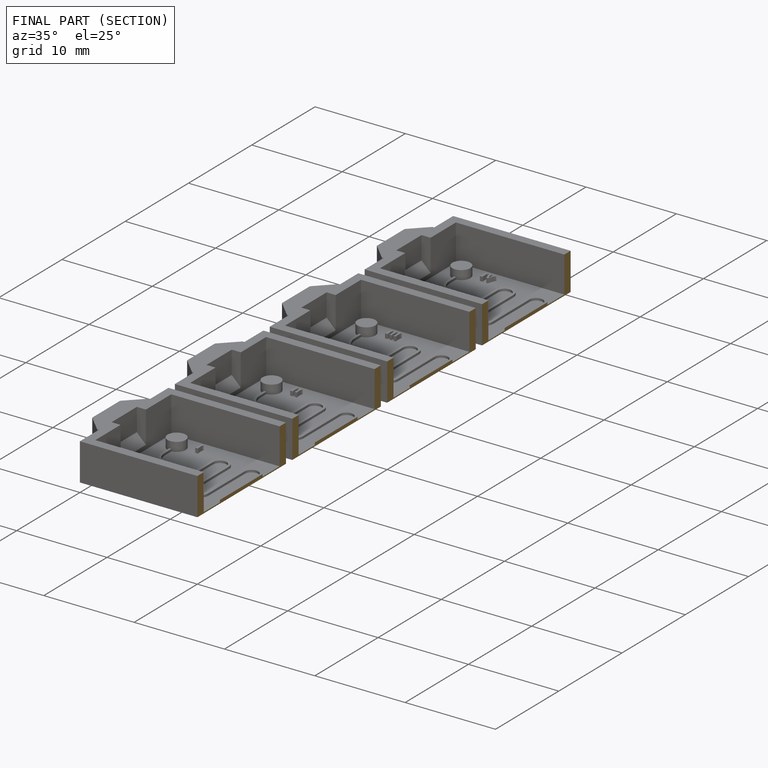
[diagram: finished part — half-section view (interior)]
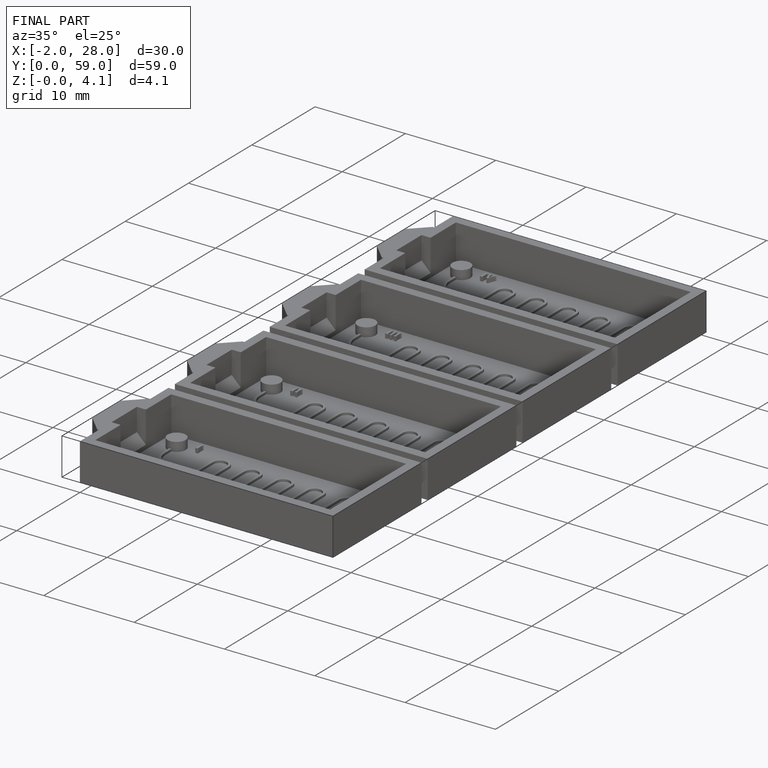
[diagram: finished part — iso view with bounding-box wireframe]
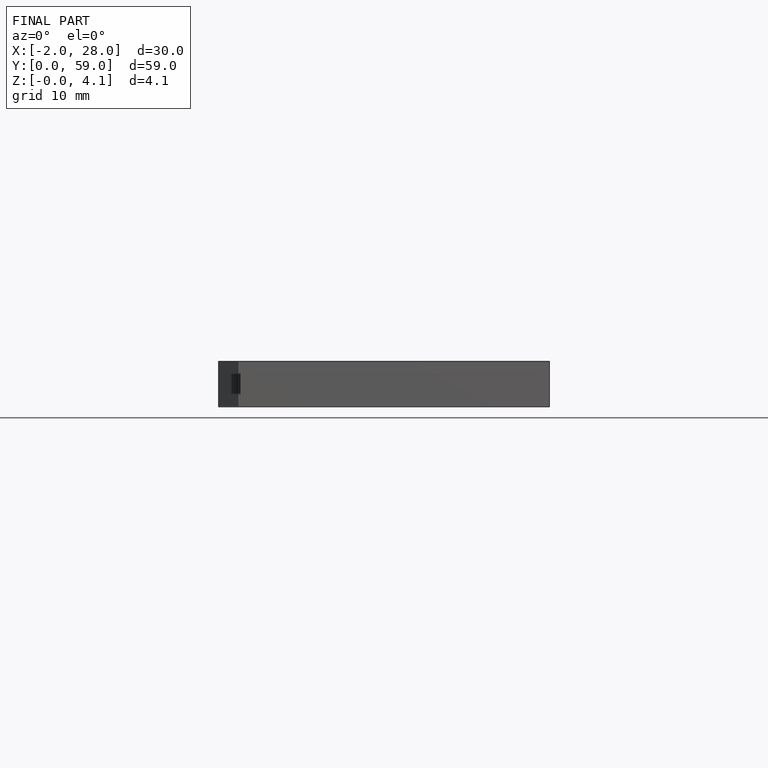
[diagram: finished part — front view with bounding-box wireframe]
